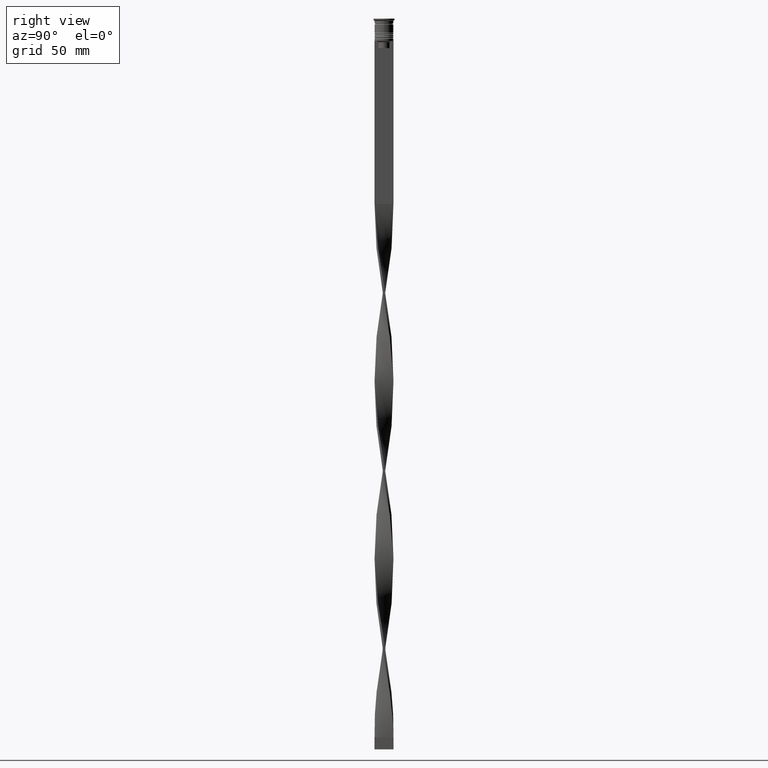
[diagram: clean part render]
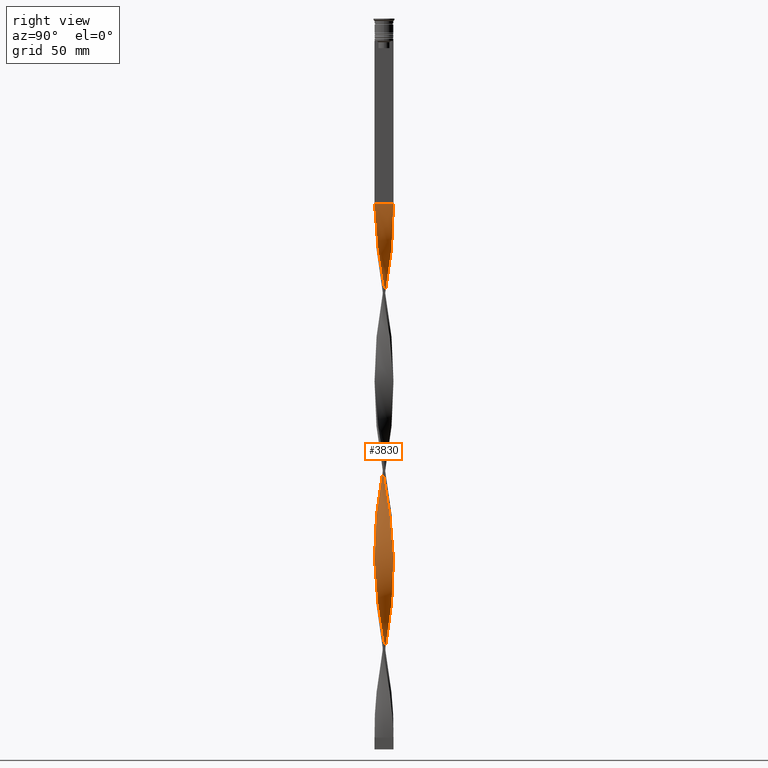
[diagram: same view with one face highlighted and labeled with its STEP entity id]
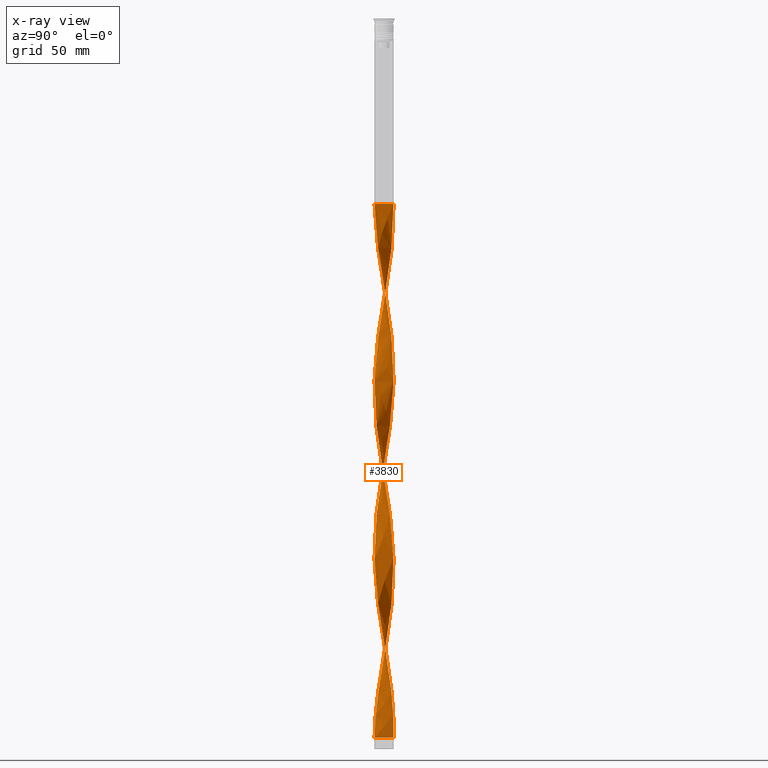
[diagram: x-ray of the same camera — body ghosted, the highlighted face saturated]
A machine part, right view. The second image highlights one B-rep face of the part: STEP entity #3830.
The next image is the same camera in x-ray: the body ghosted, the highlighted face saturated — about 0% of this face is hidden behind the body in this view.
In plain terms, the highlighted face is a freeform B-spline surface patch.
Its self-contained STEP definition (entity closure, byte-faithful):
#11 = CARTESIAN_POINT ( 'NONE',  ( -2.851421105456868776, -2.849455681240740113, -288.6403508771929864 ) ) ;
#14 = CARTESIAN_POINT ( 'NONE',  ( -2.604254856879658409, -3.076988241839528015, -209.3421052631578902 ) ) ;
#31 = CARTESIAN_POINT ( 'NONE',  ( -3.462245594293745121, 2.064668361939406616, -256.9210526315789593 ) ) ;
#39 = CARTESIAN_POINT ( 'NONE',  ( -3.462245594293745121, -2.064668361939406616, -201.4122807017543835 ) ) ;
#51 = CARTESIAN_POINT ( 'NONE',  ( -2.343526447751538289, 3.279921308307419903, -165.7280701754386030 ) ) ;
#52 = CARTESIAN_POINT ( 'NONE',  ( -2.851421105456868776, -2.849455681240740113, -137.9736842105263008 ) ) ;
#65 = CARTESIAN_POINT ( 'NONE',  ( -4.027627644762845627, -0.1679748646140039048, -189.5175438596491517 ) ) ;
#72 = CARTESIAN_POINT ( 'NONE',  ( 3.945048299290513150, 0.8286096283926639439, -118.1491228070175481 ) ) ;
#73 = CARTESIAN_POINT ( 'NONE',  ( -1.471668575845527682, -3.767727018166428188, -147.8859649122807127 ) ) ;
#82 = CARTESIAN_POINT ( 'NONE',  ( 0.5000000000000000000, -4.000000000000000000, -78.50000000000000000 ) ) ;
#86 = CARTESIAN_POINT ( 'NONE',  ( -3.876387747932444228, 1.155505650454256017, -112.2017543859649180 ) ) ;
#88 = CARTESIAN_POINT ( 'NONE',  ( 1.471668575845526350, -3.767727018166428632, -84.44736842105264429 ) ) ;
#89 = CARTESIAN_POINT ( 'NONE',  ( 0.1685505501969328801, 4.041431181225382474, -231.1491228070175623 ) ) ;
#99 = CARTESIAN_POINT ( 'NONE',  ( -0.8314494498030657876, 3.958568818774615750, -155.8157894736842195 ) ) ;
#105 = CARTESIAN_POINT ( 'NONE',  ( -1.152832542896753409, -3.877183566532631520, -219.2543859649122737 ) ) ;
#106 = CARTESIAN_POINT ( 'NONE',  ( 2.062280596060475091, 3.463668393930408040, -137.9736842105263008 ) ) ;
#107 = CARTESIAN_POINT ( 'NONE',  ( 1.151559012824299399, 3.863147918470521969, -225.2017543859649038 ) ) ;
#121 = CARTESIAN_POINT ( 'NONE',  ( 0.8258892559684172241, 3.945618701404880024, -145.9035087719298076 ) ) ;
#129 = CARTESIAN_POINT ( 'NONE',  ( 3.876387747932445116, 1.155505650454255795, -120.1315789473683964 ) ) ;
#130 = CARTESIAN_POINT ( 'NONE',  ( -1.775272850193347685, 3.634553836156354745, -243.0438596491228509 ) ) ;
#150 = CARTESIAN_POINT ( 'NONE',  ( 1.151559012824296735, -3.863147918470522413, -233.1315789473684106 ) ) ;
#151 = CARTESIAN_POINT ( 'NONE',  ( 3.622139992111328866, 1.769209393358442073, -205.3771929824561653 ) ) ;
#153 = CARTESIAN_POINT ( 'NONE',  ( 0.5000000000000000000, 4.000000000000000000, -78.50000000000000000 ) ) ;
#171 = CARTESIAN_POINT ( 'NONE',  ( -0.4989459690400814829, 4.014053836277128973, -235.1140350877193441 ) ) ;
#174 = CARTESIAN_POINT ( 'NONE',  ( -4.000343807327721102, -0.4972418155935313666, -122.1140350877193015 ) ) ;
#191 = CARTESIAN_POINT ( 'NONE',  ( 2.604254856879656632, 3.076988241839529348, -284.6754385964912331 ) ) ;
#192 = CARTESIAN_POINT ( 'NONE',  ( -0.8258892559684176682, -3.945618701404880024, -221.2368421052631788 ) ) ;
#200 = CARTESIAN_POINT ( 'NONE',  ( -3.863941018946714934, -1.148895035284348332, -126.0789473684210691 ) ) ;
#214 = CARTESIAN_POINT ( 'NONE',  ( -4.027627644762845627, -0.1679748646140039048, -189.5175438596491517 ) ) ;
#233 = CARTESIAN_POINT ( 'NONE',  ( 0.8258892559684172241, 3.945618701404880024, -296.5701754385964932 ) ) ;
#237 = CARTESIAN_POINT ( 'NONE',  ( -3.633328892441398672, 1.777778512611468020, -108.2368421052631504 ) ) ;
#261 = CARTESIAN_POINT ( 'NONE',  ( -3.087533734903234350, -2.613180192100606813, -135.9912280701753957 ) ) ;
#264 = VECTOR ( 'NONE', #398, 1000.000000000000000 ) ;
#267 = CARTESIAN_POINT ( 'NONE',  ( -2.343526447751539177, -3.279921308307419459, -141.9385964912280826 ) ) ;
#284 = CARTESIAN_POINT ( 'NONE',  ( 3.863941018946714490, 1.148895035284349442, -201.4122807017543835 ) ) ;
#287 = CARTESIAN_POINT ( 'NONE',  ( 4.041546438877109182, 0.1657638771030590097, -195.4649122807017534 ) ) ;
#304 = CARTESIAN_POINT ( 'NONE',  ( 1.152832542896750079, -3.877183566532631964, -163.7456140350876979 ) ) ;
#320 = CARTESIAN_POINT ( 'NONE',  ( -3.945048299290513150, 0.8286096283926643880, -264.8508771929824661 ) ) ;
#341 = CARTESIAN_POINT ( 'NONE',  ( 3.959141175778333022, 0.8287197540840007814, -199.4298245614035068 ) ) ;
#357 = CARTESIAN_POINT ( 'NONE',  ( -0.8258892559684165580, 3.945618701404880024, -86.42982456140350678 ) ) ;
#359 = CARTESIAN_POINT ( 'NONE',  ( 0.8314494498030688963, 3.958568818774615750, -227.1842105263158373 ) ) ;
#369 = CARTESIAN_POINT ( 'NONE',  ( 2.343526447751538733, -3.279921308307419903, -90.39473684210526017 ) ) ;
#371 = CARTESIAN_POINT ( 'NONE',  ( -2.349288341927600499, 3.292782951704461336, -96.34210526315787604 ) ) ;
#374 = CARTESIAN_POINT ( 'NONE',  ( 4.000343807327721102, -0.4972418155935317552, -110.2192982456140413 ) ) ;
#375 = CARTESIAN_POINT ( 'NONE',  ( -4.041546438877109182, -0.1657638771030611746, -120.1315789473684106 ) ) ;
#387 = CARTESIAN_POINT ( 'NONE',  ( -2.071744419492575151, 3.474111446233965950, -163.7456140350876979 ) ) ;
#396 = CARTESIAN_POINT ( 'NONE',  ( -2.615308476010501426, -3.085731170380873412, -290.6228070175438347 ) ) ;
#397 = CARTESIAN_POINT ( 'NONE',  ( 3.087533734903235683, 2.613180192100605037, -211.3245614035087669 ) ) ;
#398 = DIRECTION ( 'NONE',  ( 0.000000000000000000, 1.000000000000000000, 0.000000000000000000 ) ) ;
#404 = CARTESIAN_POINT ( 'NONE',  ( -0.4999999999999994449, 4.000000000000000000, -153.8333333333333144 ) ) ;
#408 = CARTESIAN_POINT ( 'NONE',  ( -2.062280596060475979, -3.463668393930407596, -213.3070175438596721 ) ) ;
#409 = CARTESIAN_POINT ( 'NONE',  ( -2.343526447751539177, -3.279921308307419459, -292.6052631578947398 ) ) ;
#410 = CARTESIAN_POINT ( 'NONE',  ( -0.8258892559684165580, 3.945618701404880024, -237.0964912280701924 ) ) ;
#425 = CARTESIAN_POINT ( 'NONE',  ( 0.5000000000000000000, -4.000000000000000000, -78.50000000000000000 ) ) ;
#426 = CARTESIAN_POINT ( 'NONE',  ( -3.622139992111327977, -1.769209393358442517, -280.7105263157894797 ) ) ;
#441 = CARTESIAN_POINT ( 'NONE',  ( 1.464052696545050436, 3.755868701344492688, -141.9385964912280826 ) ) ;
#450 = CARTESIAN_POINT ( 'NONE',  ( 0.1651977094215750508, 4.027742508751256167, -149.8684210526315894 ) ) ;
#451 = CARTESIAN_POINT ( 'NONE',  ( -1.152832542896751189, 3.877183566532631520, -239.0789473684210407 ) ) ;
#468 = CARTESIAN_POINT ( 'NONE',  ( 0.5000000000000000000, -4.000000000000000000, -229.1666666666666856 ) ) ;
#469 = CARTESIAN_POINT ( 'NONE',  ( 3.863941018946714490, -1.148895035284349442, -256.9210526315789593 ) ) ;
#470 = CARTESIAN_POINT ( 'NONE',  ( -0.8314494498030685632, -3.958568818774615750, -302.5175438596491517 ) ) ;
#487 = CARTESIAN_POINT ( 'NONE',  ( 2.349288341927600499, 3.292782951704461336, -286.6578947368421382 ) ) ;
#488 = CARTESIAN_POINT ( 'NONE',  ( 3.475539122107559997, -2.069348470232189818, -250.9736842105263008 ) ) ;
#493 = CARTESIAN_POINT ( 'NONE',  ( -3.462245594293745121, 2.064668361939406616, -106.2543859649122879 ) ) ;
#502 = CARTESIAN_POINT ( 'NONE',  ( -3.945048299290513150, -0.8286096283926643880, -193.4824561403508767 ) ) ;
#511 = EDGE_CURVE ( 'NONE', #3529, #1320, #1482, .T. ) ;
#534 = CARTESIAN_POINT ( 'NONE',  ( 4.041546438877108294, -0.1657638771030618130, -262.8684210526315042 ) ) ;
#535 = CARTESIAN_POINT ( 'NONE',  ( 3.462245594293745565, 2.064668361939405727, -276.7456140350877263 ) ) ;
#538 = CARTESIAN_POINT ( 'NONE',  ( -3.291162296146090682, 2.351558211267345211, -104.2719298245614112 ) ) ;
#549 = CARTESIAN_POINT ( 'NONE',  ( 3.768740862115096402, -1.469070316484696770, -254.9385964912280826 ) ) ;
#550 = CARTESIAN_POINT ( 'NONE',  ( -4.013708850648581183, -0.5017136063310719818, -191.4999999999999716 ) ) ;
#555 = CARTESIAN_POINT ( 'NONE',  ( -3.622139992111327977, -1.769209393358442517, -130.0438596491227941 ) ) ;
#580 = CARTESIAN_POINT ( 'NONE',  ( -2.859221371831710989, 2.861193531974598692, -250.9736842105263008 ) ) ;
#585 = CARTESIAN_POINT ( 'NONE',  ( -3.087533734903234350, -2.613180192100606813, -135.9912280701754241 ) ) ;
#603 = CARTESIAN_POINT ( 'NONE',  ( -3.876387747932444228, 1.155505650454256239, -262.8684210526315042 ) ) ;
#621 = CARTESIAN_POINT ( 'NONE',  ( 1.151559012824299399, 3.863147918470521969, -225.2017543859649038 ) ) ;
#637 = CARTESIAN_POINT ( 'NONE',  ( 4.027627644762845627, -0.1679748646140054313, -193.4824561403508767 ) ) ;
#661 = CARTESIAN_POINT ( 'NONE',  ( 2.615308476010501870, 3.085731170380873412, -215.2894736842105488 ) ) ;
#662 = CARTESIAN_POINT ( 'NONE',  ( -4.000343807327721102, -0.4972418155935313666, -122.1140350877193015 ) ) ;
#672 = CARTESIAN_POINT ( 'NONE',  ( -3.622139992111327533, 1.769209393358443627, -177.6228070175438347 ) ) ;
#676 = CARTESIAN_POINT ( 'NONE',  ( -2.062280596060474647, 3.463668393930408484, -94.35964912280701355 ) ) ;
#679 = CARTESIAN_POINT ( 'NONE',  ( -2.615308476010500538, 3.085731170380873856, -167.7105263157894797 ) ) ;
#680 = CARTESIAN_POINT ( 'NONE',  ( 4.027627644762845627, -0.1679748646140054313, -193.4824561403508767 ) ) ;
#690 = CARTESIAN_POINT ( 'NONE',  ( -3.475539122107559109, 2.069348470232190262, -175.6403508771929864 ) ) ;
#695 = CARTESIAN_POINT ( 'NONE',  ( -3.863941018946714046, 1.148895035284350996, -181.5877192982456449 ) ) ;
#709 = CARTESIAN_POINT ( 'NONE',  ( 3.087533734903234350, -2.613180192100606813, -96.34210526315787604 ) ) ;
#721 = CARTESIAN_POINT ( 'NONE',  ( 0.8314494498030671199, -3.958568818774615750, -80.48245614035087669 ) ) ;
#722 = CARTESIAN_POINT ( 'NONE',  ( -3.768740862115096402, -1.469070316484696548, -278.7280701754385746 ) ) ;
#729 = CARTESIAN_POINT ( 'NONE',  ( -3.863941018946714046, 1.148895035284350996, -181.5877192982456449 ) ) ;
#739 = CARTESIAN_POINT ( 'NONE',  ( -0.4989459690400818714, -4.014053836277128973, -223.2192982456140271 ) ) ;
#740 = CARTESIAN_POINT ( 'NONE',  ( -4.000343807327721102, 0.4972418155935313666, -185.5526315789473699 ) ) ;
#741 = CARTESIAN_POINT ( 'NONE',  ( 3.768740862115096846, 1.469070316484694327, -203.3947368421052602 ) ) ;
#751 = CARTESIAN_POINT ( 'NONE',  ( 1.771706497669051306, -3.620919232200196625, -86.42982456140350678 ) ) ;
#758 = CARTESIAN_POINT ( 'NONE',  ( 3.462245594293745565, 2.064668361939405727, -126.0789473684210691 ) ) ;
#759 = CARTESIAN_POINT ( 'NONE',  ( 0.8314494498030690073, 3.958568818774615750, -227.1842105263158089 ) ) ;
#771 = ORIENTED_EDGE ( 'NONE', *, *, #3254, .F. ) ;
#783 = CARTESIAN_POINT ( 'NONE',  ( -2.604254856879658409, -3.076988241839528015, -209.3421052631578902 ) ) ;
#784 = CARTESIAN_POINT ( 'NONE',  ( -2.349288341927600499, 3.292782951704461336, -247.0087719298245474 ) ) ;
#795 = CARTESIAN_POINT ( 'NONE',  ( -0.5000000000000005551, -4.000000000000000000, -304.5000000000000000 ) ) ;
#801 = CARTESIAN_POINT ( 'NONE',  ( 2.071744419492576039, -3.474111446233965506, -239.0789473684210407 ) ) ;
#802 = CARTESIAN_POINT ( 'NONE',  ( 1.775272850193347685, 3.634553836156354745, -290.6228070175438347 ) ) ;
#806 = CARTESIAN_POINT ( 'NONE',  ( 0.1685505501969329079, 4.041431181225382474, -80.48245614035087669 ) ) ;
#820 = CARTESIAN_POINT ( 'NONE',  ( 3.462245594293745565, 2.064668361939405727, -276.7456140350877263 ) ) ;
#821 = CARTESIAN_POINT ( 'NONE',  ( 3.075191833988901280, 2.606375871620971285, -280.7105263157894797 ) ) ;
#825 = CARTESIAN_POINT ( 'NONE',  ( 0.4989459690400802061, -4.014053836277129861, -159.7807017543859729 ) ) ;
#842 = CARTESIAN_POINT ( 'NONE',  ( 2.851421105456868332, -2.849455681240740557, -245.0263157894736992 ) ) ;
#844 = CARTESIAN_POINT ( 'NONE',  ( -2.349288341927602719, -3.292782951704460892, -211.3245614035087385 ) ) ;
#850 = CARTESIAN_POINT ( 'NONE',  ( -2.349288341927600499, 3.292782951704461780, -96.34210526315787604 ) ) ;
#864 = CARTESIAN_POINT ( 'NONE',  ( 2.071744419492575595, -3.474111446233965506, -239.0789473684210407 ) ) ;
#873 = CARTESIAN_POINT ( 'NONE',  ( -1.151559012824297401, -3.863147918470522413, -149.8684210526315894 ) ) ;
#889 = CARTESIAN_POINT ( 'NONE',  ( 4.000343807327721102, 0.4972418155935300343, -197.4473684210526585 ) ) ;
#896 = CARTESIAN_POINT ( 'NONE',  ( 3.754858320186921894, -1.466642081532861797, -185.5526315789473699 ) ) ;
#904 = VERTEX_POINT ( 'NONE', #2858 ) ;
#915 = CARTESIAN_POINT ( 'NONE',  ( -3.863941018946714934, -1.148895035284348332, -276.7456140350877263 ) ) ;
#921 = CARTESIAN_POINT ( 'NONE',  ( -0.4999999999999997780, 1.333333333333333481, -304.5000000000000000 ) ) ;
#937 = CARTESIAN_POINT ( 'NONE',  ( -2.349288341927600499, 3.292782951704461780, -247.0087719298245190 ) ) ;
#941 = CARTESIAN_POINT ( 'NONE',  ( -0.4999999999999994449, 4.000000000000000000, -304.5000000000000000 ) ) ;
#945 = EDGE_CURVE ( 'NONE', #2796, #904, #3892, .T. ) ;
#955 = CARTESIAN_POINT ( 'NONE',  ( 2.604254856879654412, -3.076988241839531568, -173.6578947368421098 ) ) ;
#977 = CARTESIAN_POINT ( 'NONE',  ( -3.633328892441398672, 1.777778512611468020, -258.9035087719299213 ) ) ;
#992 = CARTESIAN_POINT ( 'NONE',  ( 2.071744419492576039, -3.474111446233965506, -88.41228070175438347 ) ) ;
#997 = CARTESIAN_POINT ( 'NONE',  ( -3.622139992111327533, 1.769209393358443627, -177.6228070175438347 ) ) ;
#998 = CARTESIAN_POINT ( 'NONE',  ( 1.775272850193346796, -3.634553836156355633, -167.7105263157894797 ) ) ;
#1009 = CARTESIAN_POINT ( 'NONE',  ( 1.152832542896752965, 3.877183566532631076, -143.9210526315789593 ) ) ;
#1013 = CARTESIAN_POINT ( 'NONE',  ( -3.462245594293745121, 2.064668361939406616, -106.2543859649122879 ) ) ;
#1016 = CARTESIAN_POINT ( 'NONE',  ( 3.075191833988901280, 2.606375871620971285, -130.0438596491227941 ) ) ;
#1017 = CARTESIAN_POINT ( 'NONE',  ( 3.633328892441399116, -1.777778512611468464, -183.5701754385964648 ) ) ;
#1027 = CARTESIAN_POINT ( 'NONE',  ( 0.4989459690400829817, 4.014053836277128973, -147.8859649122807127 ) ) ;
#1033 = CARTESIAN_POINT ( 'NONE',  ( 3.281536428505396952, -2.341264331166398982, -98.32456140350876694 ) ) ;
#1034 = CARTESIAN_POINT ( 'NONE',  ( -1.151559012824297401, -3.863147918470522413, -300.5350877192982466 ) ) ;
#1048 = CARTESIAN_POINT ( 'NONE',  ( 2.859221371831710545, 2.861193531974598692, -132.0263157894736992 ) ) ;
#1059 = CARTESIAN_POINT ( 'NONE',  ( -0.8258892559684176682, -3.945618701404880024, -221.2368421052631788 ) ) ;
#1060 = CARTESIAN_POINT ( 'NONE',  ( 2.615308476010501426, -3.085731170380873412, -92.37719298245615107 ) ) ;
#1061 = CARTESIAN_POINT ( 'NONE',  ( -3.754858320186921894, 1.466642081532862241, -260.8859649122807127 ) ) ;
#1065 = CARTESIAN_POINT ( 'NONE',  ( 0.5000000000000000000, -4.000000000000000000, -78.50000000000000000 ) ) ;
#1069 = CARTESIAN_POINT ( 'NONE',  ( -2.615308476010500538, 3.085731170380874300, -167.7105263157894797 ) ) ;
#1077 = CARTESIAN_POINT ( 'NONE',  ( 3.475539122107559997, -2.069348470232189818, -100.3070175438596294 ) ) ;
#1078 = CARTESIAN_POINT ( 'NONE',  ( -3.959141175778332133, -0.8287197540840012255, -274.7631578947368780 ) ) ;
#1091 = CARTESIAN_POINT ( 'NONE',  ( 2.859221371831710989, 2.861193531974598692, -282.6929824561403848 ) ) ;
#1092 = CARTESIAN_POINT ( 'NONE',  ( -1.771706497669051972, -3.620919232200196625, -296.5701754385964932 ) ) ;
#1113 = CARTESIAN_POINT ( 'NONE',  ( 3.945048299290513150, 0.8286096283926639439, -268.8157894736842195 ) ) ;
#1115 = CARTESIAN_POINT ( 'NONE',  ( 3.087533734903234350, -2.613180192100606813, -247.0087719298245190 ) ) ;
#1119 = CARTESIAN_POINT ( 'NONE',  ( -3.075191833988900836, 2.606375871620972173, -102.2894736842105203 ) ) ;
#1134 = CARTESIAN_POINT ( 'NONE',  ( 2.851421105456868332, -2.849455681240740557, -245.0263157894736992 ) ) ;
#1138 = CARTESIAN_POINT ( 'NONE',  ( 0.1651977094215738573, -4.027742508751257056, -157.7982456140350962 ) ) ;
#1151 = CARTESIAN_POINT ( 'NONE',  ( 1.775272850193347685, 3.634553836156354745, -290.6228070175438347 ) ) ;
#1152 = CARTESIAN_POINT ( 'NONE',  ( 4.027627644762845627, 0.1679748646140053203, -264.8508771929824661 ) ) ;
#1162 = CARTESIAN_POINT ( 'NONE',  ( -0.5000000000000002220, -1.333333333333333481, -304.5000000000000000 ) ) ;
#1173 = CARTESIAN_POINT ( 'NONE',  ( -3.075191833988901724, -2.606375871620970841, -205.3771929824561653 ) ) ;
#1183 = CARTESIAN_POINT ( 'NONE',  ( -3.959141175778332133, -0.8287197540840012255, -124.0964912280701640 ) ) ;
#1193 = CARTESIAN_POINT ( 'NONE',  ( 3.087533734903234350, -2.613180192100606813, -247.0087719298245474 ) ) ;
#1202 = CARTESIAN_POINT ( 'NONE',  ( 1.471668575845526794, 3.767727018166428188, -223.2192982456140271 ) ) ;
#1205 = CARTESIAN_POINT ( 'NONE',  ( -0.8314494498030685632, -3.958568818774615750, -151.8508771929824661 ) ) ;
#1220 = CARTESIAN_POINT ( 'NONE',  ( 3.754858320186921894, -1.466642081532861797, -185.5526315789473699 ) ) ;
#1239 = CARTESIAN_POINT ( 'NONE',  ( -0.1651977094215744957, 4.027742508751256167, -82.46491228070175339 ) ) ;
#1244 = CARTESIAN_POINT ( 'NONE',  ( 2.859221371831710545, -2.861193531974599580, -175.6403508771930149 ) ) ;
#1265 = CARTESIAN_POINT ( 'NONE',  ( -0.4989459690400814273, 4.014053836277128973, -235.1140350877193157 ) ) ;
#1284 = CARTESIAN_POINT ( 'NONE',  ( 3.622139992111328866, 1.769209393358442073, -205.3771929824561653 ) ) ;
#1296 = CARTESIAN_POINT ( 'NONE',  ( 2.851421105456868332, -2.849455681240740557, -94.35964912280701355 ) ) ;
#1306 = CARTESIAN_POINT ( 'NONE',  ( 2.604254856879656632, 3.076988241839529348, -134.0087719298245759 ) ) ;
#1319 = CARTESIAN_POINT ( 'NONE',  ( 0.8314494498030671199, -3.958568818774615750, -80.48245614035087669 ) ) ;
#1320 = VERTEX_POINT ( 'NONE', #795 ) ;
#1325 = CARTESIAN_POINT ( 'NONE',  ( -0.8314494498030685632, -3.958568818774615750, -302.5175438596491517 ) ) ;
#1326 = CARTESIAN_POINT ( 'NONE',  ( 1.464052696545049548, -3.755868701344493132, -165.7280701754386030 ) ) ;
#1336 = CARTESIAN_POINT ( 'NONE',  ( 3.075191833988901280, 2.606375871620971285, -130.0438596491227941 ) ) ;
#1340 = CARTESIAN_POINT ( 'NONE',  ( -3.768740862115095513, 1.469070316484698990, -179.6052631578947398 ) ) ;
#1351 = CARTESIAN_POINT ( 'NONE',  ( 3.863941018946714490, -1.148895035284349442, -106.2543859649122879 ) ) ;
#1357 = CARTESIAN_POINT ( 'NONE',  ( -0.1685505501969314646, 4.041431181225382474, -151.8508771929824661 ) ) ;
#1358 = CARTESIAN_POINT ( 'NONE',  ( -2.604254856879656188, 3.076988241839530236, -248.9912280701754241 ) ) ;
#1374 = CARTESIAN_POINT ( 'NONE',  ( -1.151559012824296291, 3.863147918470523301, -157.7982456140350962 ) ) ;
#1382 = CARTESIAN_POINT ( 'NONE',  ( 3.633328892441398672, 1.777778512611467576, -124.0964912280701640 ) ) ;
#1383 = CARTESIAN_POINT ( 'NONE',  ( -3.462245594293745121, 2.064668361939406616, -256.9210526315789593 ) ) ;
#1399 = CARTESIAN_POINT ( 'NONE',  ( -3.945048299290513150, -0.8286096283926643880, -193.4824561403508767 ) ) ;
#1400 = CARTESIAN_POINT ( 'NONE',  ( 0.5000000000000000000, 4.000000000000000000, -229.1666666666666856 ) ) ;
#1415 = CARTESIAN_POINT ( 'NONE',  ( 4.027627644762845627, 0.1679748646140053203, -264.8508771929824661 ) ) ;
#1440 = CARTESIAN_POINT ( 'NONE',  ( 0.4989459690400829817, 4.014053836277128973, -298.5526315789473983 ) ) ;
#1442 = CARTESIAN_POINT ( 'NONE',  ( 0.1685505501969309927, -4.041431181225382474, -227.1842105263158373 ) ) ;
#1447 = CARTESIAN_POINT ( 'NONE',  ( -2.851421105456868776, -2.849455681240740113, -137.9736842105263008 ) ) ;
#1460 = CARTESIAN_POINT ( 'NONE',  ( 0.1651977094215750508, 4.027742508751256167, -300.5350877192982466 ) ) ;
#1461 = CARTESIAN_POINT ( 'NONE',  ( -2.859221371831710989, -2.861193531974598248, -207.3596491228070136 ) ) ;
#1479 = CARTESIAN_POINT ( 'NONE',  ( 4.013708850648581183, 0.5017136063310724259, -266.8333333333333712 ) ) ;
#1480 = CARTESIAN_POINT ( 'NONE',  ( 2.604254856879656632, 3.076988241839529348, -284.6754385964912331 ) ) ;
#1482 =( BOUNDED_CURVE ( )  B_SPLINE_CURVE ( 2, ( #1547, #2491, #1239, #4047, #357, #2162, #1609, #3510, #676, #371, #3137, #1568, #1667, #2301, #1013, #3214, #2899, #86, #1984, #2930, #1534, #375, #662, #1183, #3833, #2432, #4034, #3078, #3410, #585, #52, #2144, #267, #1613, #1636, #73, #873, #1205, #1804, #3370, #2790, #2476, #3751, #1940, #1326, #998, #2452, #2572, #3728, #2248, #3181, #4055, #2865, #1017, #896, #3514, #1846, #3104, #680, #287, #3534, #2014, #2587, #741, #151, #2904, #3906, #397, #3279, #1695, #3591, #2947, #2609, #2632, #107, #759, #1400, #89, #3556, #171, #410, #451, #1995, #130, #3945, #784, #1358, #1958, #1672, #2672, #1383, #3253, #1061, #1654, #3237, #1979, #2265, #1717, #2039, #1078, #2285, #722, #426, #2922, #2970, #3613, #2339, #2321, #2653, #3922, #1092, #3300, #1034, #470, #3889 ),
 .UNSPECIFIED., .F., .T. ) 
 B_SPLINE_CURVE_WITH_KNOTS ( ( 3, 2, 2, 2, 2, 2, 2, 2, 2, 2, 2, 2, 2, 2, 2, 2, 2, 2, 2, 2, 2, 2, 2, 2, 2, 2, 2, 2, 2, 2, 2, 2, 2, 2, 2, 2, 2, 2, 2, 2, 2, 2, 2, 2, 2, 2, 2, 2, 2, 2, 2, 2, 2, 2, 2, 2, 2, 3 ),
 ( 0.000000000000000000, 0.01315789473684210453, 0.02631578947368420907, 0.03947368421052631360, 0.05263157894736841813, 0.06578947368421052266, 0.07894736842105262720, 0.09210526315789473173, 0.1052631578947368363, 0.1184210526315789408, 0.1315789473684210453, 0.1447368421052631637, 0.1578947368421052544, 0.1710526315789473728, 0.1842105263157894635, 0.1973684210526315541, 0.2105263157894736725, 0.2236842105263157909, 0.2368421052631578816, 0.2500000000000000000, 0.2631578947368420907, 0.2763157894736842368, 0.2894736842105263275, 0.3026315789473684181, 0.3157894736842105088, 0.3289473684210526550, 0.3421052631578947456, 0.3552631578947368918, 0.3684210526315789269, 0.3815789473684210731, 0.3947368421052631082, 0.4078947368421052544, 0.4210526315789473450, 0.4342105263157895467, 0.4473684210526315819, 0.4605263157894736725, 0.4736842105263157632, 0.4868421052631579093, 0.5000000000000000000, 0.5131578947368421462, 0.5263157894736841813, 0.5394736842105263275, 0.5526315789473684736, 0.5657894736842105088, 0.5789473684210526550, 0.5921052631578946901, 0.6052631578947368363, 0.6184210526315789824, 0.6315789473684210176, 0.6447368421052631637, 0.6578947368421053099, 0.6710526315789473450, 0.6842105263157894912, 0.6973684210526315264, 0.7105263157894737835, 0.7236842105263158187, 0.7368421052631578538, 0.7500000000000000000 ),
 .UNSPECIFIED. ) 
 CURVE ( )  GEOMETRIC_REPRESENTATION_ITEM ( )  RATIONAL_B_SPLINE_CURVE ( ( 1.000000000000000000, 0.9965844930066698470, 1.000000000000000000, 0.9965844930066698470, 1.000000000000000000, 0.9965844930066698470, 1.000000000000000000, 0.9965844930066698470, 1.000000000000000000, 0.9965844930066698470, 1.000000000000000000, 0.9965844930066698470, 1.000000000000000000, 0.9965844930066698470, 1.000000000000000000, 0.9965844930066698470, 1.000000000000000000, 0.9965844930066698470, 1.000000000000000000, 0.9965844930066698470, 1.000000000000000000, 0.9965844930066698470, 1.000000000000000000, 0.9965844930066698470, 1.000000000000000000, 0.9965844930066698470, 1.000000000000000000, 0.9965844930066698470, 1.000000000000000000, 0.9965844930066698470, 1.000000000000000000, 0.9965844930066698470, 1.000000000000000000, 0.9965844930066698470, 1.000000000000000000, 0.9965844930066698470, 1.000000000000000000, 0.9965844930066698470, 1.000000000000000000, 0.9965844930066698470, 1.000000000000000000, 0.9965844930066698470, 1.000000000000000000, 0.9965844930066698470, 1.000000000000000000, 0.9965844930066698470, 1.000000000000000000, 0.9965844930066698470, 1.000000000000000000, 0.9965844930066698470, 1.000000000000000000, 0.9965844930066698470, 1.000000000000000000, 0.9965844930066698470, 1.000000000000000000, 0.9965844930066698470, 1.000000000000000000, 0.9965844930066698470, 1.000000000000000000, 0.9965844930066698470, 1.000000000000000000, 0.9965844930066698470, 1.000000000000000000, 0.9965844930066698470, 1.000000000000000000, 0.9965844930066698470, 1.000000000000000000, 0.9965844930066698470, 1.000000000000000000, 0.9965844930066698470, 1.000000000000000000, 0.9965844930066698470, 1.000000000000000000, 0.9965844930066698470, 1.000000000000000000, 0.9965844930066698470, 1.000000000000000000, 0.9965844930066698470, 1.000000000000000000, 0.9965844930066698470, 1.000000000000000000, 0.9965844930066698470, 1.000000000000000000, 0.9965844930066698470, 1.000000000000000000, 0.9965844930066698470, 1.000000000000000000, 0.9965844930066698470, 1.000000000000000000, 0.9965844930066698470, 1.000000000000000000, 0.9965844930066698470, 1.000000000000000000, 0.9965844930066698470, 1.000000000000000000, 0.9965844930066698470, 1.000000000000000000, 0.9965844930066698470, 1.000000000000000000, 0.9965844930066698470, 1.000000000000000000, 0.9965844930066698470, 1.000000000000000000, 0.9965844930066698470, 1.000000000000000000, 0.9965844930066698470, 1.000000000000000000, 0.9965844930066698470, 1.000000000000000000, 0.9965844930066698470, 1.000000000000000000, 0.9965844930066698470, 1.000000000000000000, 0.9965844930066698470, 1.000000000000000000 ) ) 
 REPRESENTATION_ITEM ( '' )  );
#1484 = CARTESIAN_POINT ( 'NONE',  ( -3.876387747932444228, 1.155505650454256239, -112.2017543859649180 ) ) ;
#1502 = CARTESIAN_POINT ( 'NONE',  ( 0.8258892559684172241, 3.945618701404880024, -296.5701754385964932 ) ) ;
#1511 = CARTESIAN_POINT ( 'NONE',  ( -2.615308476010501426, -3.085731170380873412, -139.9561403508772059 ) ) ;
#1531 = CARTESIAN_POINT ( 'NONE',  ( 2.071744419492577816, 3.474111446233964617, -219.2543859649122737 ) ) ;
#1534 = CARTESIAN_POINT ( 'NONE',  ( -4.027627644762845627, 0.1679748646140058199, -118.1491228070175481 ) ) ;
#1547 = CARTESIAN_POINT ( 'NONE',  ( 0.5000000000000000000, 4.000000000000000000, -78.50000000000000000 ) ) ;
#1551 = CARTESIAN_POINT ( 'NONE',  ( -3.087533734903234350, -2.613180192100606813, -286.6578947368421382 ) ) ;
#1568 = CARTESIAN_POINT ( 'NONE',  ( -2.859221371831710545, 2.861193531974598692, -100.3070175438596294 ) ) ;
#1572 = CARTESIAN_POINT ( 'NONE',  ( 3.768740862115096846, 1.469070316484694327, -203.3947368421052886 ) ) ;
#1574 = LINE ( 'NONE', #2266, #264 ) ;
#1580 = B_SPLINE_CURVE_WITH_KNOTS ( 'NONE', 3,
 ( #2123, #1162, #921, #941 ),
 .UNSPECIFIED., .F., .F.,
 ( 4, 4 ),
 ( 0.000000000000000000, 1.000000000000000000 ),
 .UNSPECIFIED. ) ;
#1593 = CARTESIAN_POINT ( 'NONE',  ( -0.8258892559684165580, 3.945618701404880024, -237.0964912280701924 ) ) ;
#1601 = CARTESIAN_POINT ( 'NONE',  ( -3.291162296146092014, -2.351558211267342990, -203.3947368421052602 ) ) ;
#1609 = CARTESIAN_POINT ( 'NONE',  ( -1.464052696545049548, 3.755868701344493132, -90.39473684210526017 ) ) ;
#1612 = CARTESIAN_POINT ( 'NONE',  ( -3.291162296146090682, 2.351558211267345211, -254.9385964912280826 ) ) ;
#1613 = CARTESIAN_POINT ( 'NONE',  ( -2.071744419492577816, -3.474111446233965061, -143.9210526315789593 ) ) ;
#1624 = CARTESIAN_POINT ( 'NONE',  ( 3.633328892441399116, 1.777778512611467576, -124.0964912280701640 ) ) ;
#1634 = CARTESIAN_POINT ( 'NONE',  ( -3.475539122107559553, 2.069348470232190706, -175.6403508771930149 ) ) ;
#1636 = CARTESIAN_POINT ( 'NONE',  ( -1.771706497669051972, -3.620919232200196625, -145.9035087719298076 ) ) ;
#1647 = CARTESIAN_POINT ( 'NONE',  ( -1.471668575845525240, 3.767727018166429076, -159.7807017543859729 ) ) ;
#1653 = CARTESIAN_POINT ( 'NONE',  ( 3.622139992111327533, -1.769209393358443627, -102.2894736842105203 ) ) ;
#1654 = CARTESIAN_POINT ( 'NONE',  ( -3.876387747932444228, 1.155505650454256017, -262.8684210526315042 ) ) ;
#1663 = CARTESIAN_POINT ( 'NONE',  ( 3.876387747932445116, 1.155505650454255573, -120.1315789473684106 ) ) ;
#1667 = CARTESIAN_POINT ( 'NONE',  ( -3.075191833988900836, 2.606375871620972173, -102.2894736842105203 ) ) ;
#1670 = CARTESIAN_POINT ( 'NONE',  ( -1.775272850193348129, -3.634553836156354745, -215.2894736842105203 ) ) ;
#1671 = CARTESIAN_POINT ( 'NONE',  ( 4.027627644762845627, 0.1679748646140053203, -114.1842105263157947 ) ) ;
#1672 = CARTESIAN_POINT ( 'NONE',  ( -3.075191833988900836, 2.606375871620972173, -252.9561403508772059 ) ) ;
#1683 = CARTESIAN_POINT ( 'NONE',  ( 3.959141175778332133, -0.8287197540840016696, -108.2368421052631646 ) ) ;
#1693 = CARTESIAN_POINT ( 'NONE',  ( -0.1651977094215772157, -4.027742508751256167, -225.2017543859649038 ) ) ;
#1694 = CARTESIAN_POINT ( 'NONE',  ( 3.959141175778332133, -0.8287197540840015586, -108.2368421052631504 ) ) ;
#1695 = CARTESIAN_POINT ( 'NONE',  ( 2.615308476010501426, 3.085731170380873412, -215.2894736842105203 ) ) ;
#1709 = CARTESIAN_POINT ( 'NONE',  ( -3.281536428505396064, 2.341264331166400314, -173.6578947368421098 ) ) ;
#1716 = CARTESIAN_POINT ( 'NONE',  ( -1.771706497669051084, 3.620919232200197069, -161.7631578947368212 ) ) ;
#1717 = CARTESIAN_POINT ( 'NONE',  ( -4.041546438877109182, -0.1657638771030611746, -270.7982456140350678 ) ) ;
#1735 = CARTESIAN_POINT ( 'NONE',  ( 2.859221371831710545, 2.861193531974598692, -282.6929824561403848 ) ) ;
#1736 = CARTESIAN_POINT ( 'NONE',  ( 0.1651977094215750508, 4.027742508751256167, -300.5350877192982466 ) ) ;
#1754 = CARTESIAN_POINT ( 'NONE',  ( -0.1651977094215772157, -4.027742508751256167, -225.2017543859649038 ) ) ;
#1759 = CARTESIAN_POINT ( 'NONE',  ( -3.959141175778332133, -0.8287197540840011145, -124.0964912280701640 ) ) ;
#1775 = CARTESIAN_POINT ( 'NONE',  ( 0.8314494498030671199, -3.958568818774615750, -231.1491228070175623 ) ) ;
#1794 = CARTESIAN_POINT ( 'NONE',  ( 3.291162296146090682, 2.351558211267345211, -278.7280701754385746 ) ) ;
#1795 = CARTESIAN_POINT ( 'NONE',  ( 1.152832542896752965, 3.877183566532631076, -294.5877192982455881 ) ) ;
#1799 = CARTESIAN_POINT ( 'NONE',  ( -2.859221371831710989, 2.861193531974598692, -100.3070175438596294 ) ) ;
#1804 = CARTESIAN_POINT ( 'NONE',  ( -0.5000000000000005551, -4.000000000000000000, -153.8333333333333144 ) ) ;
#1812 = CARTESIAN_POINT ( 'NONE',  ( 4.000343807327721102, -0.4972418155935317552, -260.8859649122807127 ) ) ;
#1818 = CARTESIAN_POINT ( 'NONE',  ( -3.475539122107559997, -2.069348470232189818, -132.0263157894736707 ) ) ;
#1842 = CARTESIAN_POINT ( 'NONE',  ( 1.464052696545049548, -3.755868701344493132, -165.7280701754386030 ) ) ;
#1846 = CARTESIAN_POINT ( 'NONE',  ( 3.945048299290513150, -0.8286096283926659423, -189.5175438596491517 ) ) ;
#1863 = CARTESIAN_POINT ( 'NONE',  ( -3.475539122107559997, -2.069348470232189818, -282.6929824561403848 ) ) ;
#1880 = CARTESIAN_POINT ( 'NONE',  ( -1.464052696545049548, 3.755868701344493132, -241.0614035087719174 ) ) ;
#1901 = CARTESIAN_POINT ( 'NONE',  ( 1.775272850193346796, -3.634553836156355633, -167.7105263157894797 ) ) ;
#1923 = CARTESIAN_POINT ( 'NONE',  ( -2.604254856879656188, 3.076988241839530236, -248.9912280701754241 ) ) ;
#1934 = CARTESIAN_POINT ( 'NONE',  ( -4.041546438877108294, 0.1657638771030640612, -187.5350877192982466 ) ) ;
#1939 = CARTESIAN_POINT ( 'NONE',  ( -1.151559012824297401, -3.863147918470522413, -300.5350877192982466 ) ) ;
#1940 = CARTESIAN_POINT ( 'NONE',  ( 1.152832542896750301, -3.877183566532631964, -163.7456140350876979 ) ) ;
#1956 = CARTESIAN_POINT ( 'NONE',  ( -2.071744419492577371, -3.474111446233965061, -294.5877192982455881 ) ) ;
#1958 = CARTESIAN_POINT ( 'NONE',  ( -2.859221371831710545, 2.861193531974598692, -250.9736842105263008 ) ) ;
#1967 = ORIENTED_EDGE ( 'NONE', *, *, #2699, .F. ) ;
#1970 = CARTESIAN_POINT ( 'NONE',  ( 4.041546438877108294, -0.1657638771030618130, -112.2017543859649180 ) ) ;
#1978 = CARTESIAN_POINT ( 'NONE',  ( 2.851421105456868332, -2.849455681240740557, -94.35964912280701355 ) ) ;
#1979 = CARTESIAN_POINT ( 'NONE',  ( -4.013708850648581183, 0.5017136063310728700, -266.8333333333333712 ) ) ;
#1984 = CARTESIAN_POINT ( 'NONE',  ( -3.945048299290513150, 0.8286096283926643880, -114.1842105263157947 ) ) ;
#1987 = CARTESIAN_POINT ( 'NONE',  ( 4.000343807327721102, -0.4972418155935317552, -110.2192982456140413 ) ) ;
#1994 = CARTESIAN_POINT ( 'NONE',  ( 3.754858320186921894, 1.466642081532861797, -122.1140350877193015 ) ) ;
#1995 = CARTESIAN_POINT ( 'NONE',  ( -1.464052696545049548, 3.755868701344493132, -241.0614035087719174 ) ) ;
#2006 = CARTESIAN_POINT ( 'NONE',  ( -3.959141175778333022, 0.8287197540840021137, -183.5701754385964648 ) ) ;
#2013 = CARTESIAN_POINT ( 'NONE',  ( -0.5000000000000005551, -4.000000000000000000, -304.5000000000000000 ) ) ;
#2014 = CARTESIAN_POINT ( 'NONE',  ( 3.959141175778333022, 0.8287197540840007814, -199.4298245614035068 ) ) ;
#2037 = CARTESIAN_POINT ( 'NONE',  ( 3.281536428505396952, -2.341264331166398982, -248.9912280701754241 ) ) ;
#2038 = CARTESIAN_POINT ( 'NONE',  ( -3.462245594293745121, -2.064668361939406616, -201.4122807017543835 ) ) ;
#2039 = CARTESIAN_POINT ( 'NONE',  ( -4.000343807327721102, -0.4972418155935313666, -272.7807017543859729 ) ) ;
#2057 = CARTESIAN_POINT ( 'NONE',  ( 2.349288341927600499, 3.292782951704461780, -286.6578947368421382 ) ) ;
#2072 = CARTESIAN_POINT ( 'NONE',  ( 0.4989459690400829261, 4.014053836277128973, -298.5526315789473983 ) ) ;
#2077 = CARTESIAN_POINT ( 'NONE',  ( 0.8258892559684163359, -3.945618701404880913, -161.7631578947368212 ) ) ;
#2093 = CARTESIAN_POINT ( 'NONE',  ( 3.475539122107559553, -2.069348470232189374, -250.9736842105263008 ) ) ;
#2095 = CARTESIAN_POINT ( 'NONE',  ( 2.615308476010501426, -3.085731170380873412, -243.0438596491228509 ) ) ;
#2100 = CARTESIAN_POINT ( 'NONE',  ( -2.604254856879656188, 3.076988241839530236, -98.32456140350876694 ) ) ;
#2111 = CARTESIAN_POINT ( 'NONE',  ( 3.075191833988901280, 2.606375871620971285, -280.7105263157894797 ) ) ;
#2113 = CARTESIAN_POINT ( 'NONE',  ( -3.291162296146092014, -2.351558211267342990, -203.3947368421052886 ) ) ;
#2117 = CARTESIAN_POINT ( 'NONE',  ( -3.945048299290513150, 0.8286096283926643880, -114.1842105263157947 ) ) ;
#2121 = CARTESIAN_POINT ( 'NONE',  ( -3.075191833988901724, -2.606375871620970841, -205.3771929824561653 ) ) ;
#2123 = CARTESIAN_POINT ( 'NONE',  ( -0.5000000000000005551, -4.000000000000000000, -304.5000000000000000 ) ) ;
#2138 = CARTESIAN_POINT ( 'NONE',  ( 2.343526447751540953, 3.279921308307418126, -217.2719298245613970 ) ) ;
#2144 = CARTESIAN_POINT ( 'NONE',  ( -2.615308476010500982, -3.085731170380873412, -139.9561403508772059 ) ) ;
#2162 = CARTESIAN_POINT ( 'NONE',  ( -1.152832542896751189, 3.877183566532631520, -88.41228070175438347 ) ) ;
#2166 = CARTESIAN_POINT ( 'NONE',  ( -3.622139992111327977, -1.769209393358442517, -280.7105263157894797 ) ) ;
#2185 = CARTESIAN_POINT ( 'NONE',  ( -3.754858320186921894, 1.466642081532862241, -260.8859649122807127 ) ) ;
#2203 = CARTESIAN_POINT ( 'NONE',  ( 3.087533734903235683, 2.613180192100605037, -211.3245614035087385 ) ) ;
#2228 = CARTESIAN_POINT ( 'NONE',  ( -4.013708850648581183, 0.5017136063310728700, -266.8333333333333712 ) ) ;
#2247 = CARTESIAN_POINT ( 'NONE',  ( -4.041546438877107406, 0.1657638771030640612, -187.5350877192982750 ) ) ;
#2248 = CARTESIAN_POINT ( 'NONE',  ( 2.859221371831710101, -2.861193531974599580, -175.6403508771929864 ) ) ;
#2257 = CARTESIAN_POINT ( 'NONE',  ( 0.1651977094215750508, 4.027742508751256167, -149.8684210526315894 ) ) ;
#2264 = CARTESIAN_POINT ( 'NONE',  ( -3.087533734903233906, 2.613180192100608146, -171.6754385964912046 ) ) ;
#2265 = CARTESIAN_POINT ( 'NONE',  ( -4.027627644762845627, 0.1679748646140058199, -268.8157894736842195 ) ) ;
#2266 = CARTESIAN_POINT ( 'NONE',  ( 0.5000000000000000000, -4.000000000000000000, -78.50000000000000000 ) ) ;
#2275 = CARTESIAN_POINT ( 'NONE',  ( -3.768740862115095513, 1.469070316484699212, -179.6052631578947398 ) ) ;
#2283 = CARTESIAN_POINT ( 'NONE',  ( 1.771706497669051306, -3.620919232200196625, -86.42982456140350678 ) ) ;
#2285 = CARTESIAN_POINT ( 'NONE',  ( -3.863941018946714934, -1.148895035284348332, -276.7456140350877263 ) ) ;
#2296 = CARTESIAN_POINT ( 'NONE',  ( 1.151559012824296735, -3.863147918470522413, -82.46491228070175339 ) ) ;
#2301 = CARTESIAN_POINT ( 'NONE',  ( -3.291162296146090682, 2.351558211267345211, -104.2719298245614112 ) ) ;
#2304 = CARTESIAN_POINT ( 'NONE',  ( -3.281536428505396064, 2.341264331166400314, -173.6578947368421098 ) ) ;
#2313 = CARTESIAN_POINT ( 'NONE',  ( 3.754858320186921894, 1.466642081532861797, -122.1140350877193015 ) ) ;
#2320 = CARTESIAN_POINT ( 'NONE',  ( 0.8258892559684172241, 3.945618701404880024, -145.9035087719298076 ) ) ;
#2321 = CARTESIAN_POINT ( 'NONE',  ( -2.615308476010500982, -3.085731170380873412, -290.6228070175438347 ) ) ;
#2337 = CARTESIAN_POINT ( 'NONE',  ( -2.859221371831710989, -2.861193531974598248, -207.3596491228070136 ) ) ;
#2338 = CARTESIAN_POINT ( 'NONE',  ( 2.062280596060475091, 3.463668393930408040, -288.6403508771929864 ) ) ;
#2339 = CARTESIAN_POINT ( 'NONE',  ( -2.851421105456868776, -2.849455681240740113, -288.6403508771929864 ) ) ;
#2343 = CARTESIAN_POINT ( 'NONE',  ( -1.771706497669051972, -3.620919232200196625, -145.9035087719298076 ) ) ;
#2360 = CARTESIAN_POINT ( 'NONE',  ( -1.775272850193348129, -3.634553836156354745, -215.2894736842105488 ) ) ;
#2363 = CARTESIAN_POINT ( 'NONE',  ( -0.8314494498030685632, -3.958568818774615750, -151.8508771929824661 ) ) ;
#2378 = CARTESIAN_POINT ( 'NONE',  ( 3.633328892441398672, 1.777778512611467576, -274.7631578947368780 ) ) ;
#2397 = CARTESIAN_POINT ( 'NONE',  ( 2.062280596060475091, 3.463668393930408040, -288.6403508771929864 ) ) ;
#2399 = CARTESIAN_POINT ( 'NONE',  ( 3.281536428505396952, -2.341264331166398982, -248.9912280701754241 ) ) ;
#2404 = CARTESIAN_POINT ( 'NONE',  ( -1.775272850193347685, 3.634553836156354745, -92.37719298245615107 ) ) ;
#2423 = CARTESIAN_POINT ( 'NONE',  ( 4.013708850648581183, 0.5017136063310724259, -266.8333333333333712 ) ) ;
#2429 = CARTESIAN_POINT ( 'NONE',  ( -1.464052696545049548, 3.755868701344493132, -90.39473684210526017 ) ) ;
#2432 = CARTESIAN_POINT ( 'NONE',  ( -3.768740862115096402, -1.469070316484696548, -128.0614035087719458 ) ) ;
#2440 = EDGE_LOOP ( 'NONE', ( #771, #3842, #1967, #3667 ) ) ;
#2448 = CARTESIAN_POINT ( 'NONE',  ( 3.075191833988900836, -2.606375871620972173, -177.6228070175438347 ) ) ;
#2452 = CARTESIAN_POINT ( 'NONE',  ( 2.062280596060474647, -3.463668393930408929, -169.6929824561403279 ) ) ;
#2470 = CARTESIAN_POINT ( 'NONE',  ( 2.062280596060474647, -3.463668393930408929, -169.6929824561403279 ) ) ;
#2476 = CARTESIAN_POINT ( 'NONE',  ( 0.4989459690400802616, -4.014053836277129861, -159.7807017543859729 ) ) ;
#2491 = CARTESIAN_POINT ( 'NONE',  ( 0.1685505501969328801, 4.041431181225382474, -80.48245614035087669 ) ) ;
#2495 = CARTESIAN_POINT ( 'NONE',  ( 3.462245594293744677, -2.064668361939407948, -181.5877192982456449 ) ) ;
#2514 = CARTESIAN_POINT ( 'NONE',  ( -3.768740862115096402, -1.469070316484696548, -278.7280701754385177 ) ) ;
#2534 = CARTESIAN_POINT ( 'NONE',  ( 0.1685505501969329079, 4.041431181225382474, -231.1491228070175623 ) ) ;
#2549 = CARTESIAN_POINT ( 'NONE',  ( 2.349288341927600499, 3.292782951704461336, -135.9912280701754241 ) ) ;
#2558 = CARTESIAN_POINT ( 'NONE',  ( -2.851421105456868332, 2.849455681240740557, -169.6929824561403279 ) ) ;
#2571 = CARTESIAN_POINT ( 'NONE',  ( -0.4999999999999994449, 4.000000000000000000, -153.8333333333333144 ) ) ;
#2572 = CARTESIAN_POINT ( 'NONE',  ( 2.349288341927599610, -3.292782951704462668, -171.6754385964912331 ) ) ;
#2582 = CARTESIAN_POINT ( 'NONE',  ( 2.604254856879656632, 3.076988241839529348, -134.0087719298245759 ) ) ;
#2586 = CARTESIAN_POINT ( 'NONE',  ( 3.087533734903234350, -2.613180192100606813, -96.34210526315787604 ) ) ;
#2587 = CARTESIAN_POINT ( 'NONE',  ( 3.863941018946714490, 1.148895035284349442, -201.4122807017543835 ) ) ;
#2599 = CARTESIAN_POINT ( 'NONE',  ( -1.771706497669051084, 3.620919232200197069, -161.7631578947368212 ) ) ;
#2608 = CARTESIAN_POINT ( 'NONE',  ( -1.771706497669051972, -3.620919232200196625, -296.5701754385964932 ) ) ;
#2609 = CARTESIAN_POINT ( 'NONE',  ( 1.771706497669052194, 3.620919232200196181, -221.2368421052631788 ) ) ;
#2631 = CARTESIAN_POINT ( 'NONE',  ( 1.151559012824296735, -3.863147918470522413, -82.46491228070175339 ) ) ;
#2632 = CARTESIAN_POINT ( 'NONE',  ( 1.471668575845526794, 3.767727018166428188, -223.2192982456140271 ) ) ;
#2652 = CARTESIAN_POINT ( 'NONE',  ( -3.754858320186922338, -1.466642081532860464, -197.4473684210526585 ) ) ;
#2653 = CARTESIAN_POINT ( 'NONE',  ( -2.343526447751539177, -3.279921308307419459, -292.6052631578947398 ) ) ;
#2670 = CARTESIAN_POINT ( 'NONE',  ( 2.343526447751538733, -3.279921308307419903, -241.0614035087719174 ) ) ;
#2671 = CARTESIAN_POINT ( 'NONE',  ( -1.464052696545052212, -3.755868701344492244, -217.2719298245613970 ) ) ;
#2672 = CARTESIAN_POINT ( 'NONE',  ( -3.291162296146090682, 2.351558211267345211, -254.9385964912280826 ) ) ;
#2678 = CARTESIAN_POINT ( 'NONE',  ( -1.151559012824297401, -3.863147918470522413, -149.8684210526315894 ) ) ;
#2693 = CARTESIAN_POINT ( 'NONE',  ( 2.615308476010500982, -3.085731170380873412, -243.0438596491228509 ) ) ;
#2694 = CARTESIAN_POINT ( 'NONE',  ( 0.8314494498030671199, -3.958568818774615750, -231.1491228070175623 ) ) ;
#2698 = CARTESIAN_POINT ( 'NONE',  ( -0.5000000000000005551, -4.000000000000000000, -153.8333333333333144 ) ) ;
#2699 = EDGE_CURVE ( 'NONE', #1320, #904, #1580, .T. ) ;
#2713 = CARTESIAN_POINT ( 'NONE',  ( 0.5000000000000000000, -4.000000000000000000, -229.1666666666666856 ) ) ;
#2717 = CARTESIAN_POINT ( 'NONE',  ( 0.5000000000000000000, 4.000000000000000000, -78.50000000000000000 ) ) ;
#2729 = CARTESIAN_POINT ( 'NONE',  ( 1.464052696545050436, 3.755868701344492688, -292.6052631578947398 ) ) ;
#2736 = CARTESIAN_POINT ( 'NONE',  ( -4.027627644762845627, 0.1679748646140058199, -118.1491228070175481 ) ) ;
#2753 = CARTESIAN_POINT ( 'NONE',  ( 3.959141175778332133, -0.8287197540840016696, -258.9035087719298645 ) ) ;
#2764 = CARTESIAN_POINT ( 'NONE',  ( -2.343526447751539177, -3.279921308307419459, -141.9385964912280826 ) ) ;
#2787 = CARTESIAN_POINT ( 'NONE',  ( 0.5000000000000000000, 4.000000000000000000, -229.1666666666666856 ) ) ;
#2790 = CARTESIAN_POINT ( 'NONE',  ( 0.1651977094215738573, -4.027742508751257056, -157.7982456140350962 ) ) ;
#2796 = VERTEX_POINT ( 'NONE', #1065 ) ;
#2808 = CARTESIAN_POINT ( 'NONE',  ( 4.041546438877108294, 0.1657638771030589819, -195.4649122807017534 ) ) ;
#2831 = CARTESIAN_POINT ( 'NONE',  ( -4.000343807327721102, -0.4972418155935313666, -272.7807017543859729 ) ) ;
#2846 = CARTESIAN_POINT ( 'NONE',  ( -1.152832542896750967, 3.877183566532631520, -239.0789473684210407 ) ) ;
#2858 = CARTESIAN_POINT ( 'NONE',  ( -0.4999999999999994449, 4.000000000000000000, -304.5000000000000000 ) ) ;
#2864 = CARTESIAN_POINT ( 'NONE',  ( 3.475539122107560441, 2.069348470232189374, -207.3596491228070136 ) ) ;
#2865 = CARTESIAN_POINT ( 'NONE',  ( 3.462245594293744677, -2.064668361939407948, -181.5877192982456449 ) ) ;
#2878 = CARTESIAN_POINT ( 'NONE',  ( 3.475539122107559553, -2.069348470232189374, -100.3070175438596294 ) ) ;
#2887 = CARTESIAN_POINT ( 'NONE',  ( 3.768740862115096402, -1.469070316484696770, -104.2719298245614112 ) ) ;
#2896 = CARTESIAN_POINT ( 'NONE',  ( -4.013708850648581183, -0.5017136063310718708, -191.4999999999999716 ) ) ;
#2899 = CARTESIAN_POINT ( 'NONE',  ( -3.754858320186921894, 1.466642081532862241, -110.2192982456140413 ) ) ;
#2903 = CARTESIAN_POINT ( 'NONE',  ( 4.041546438877107406, -0.1657638771030618408, -112.2017543859649180 ) ) ;
#2904 = CARTESIAN_POINT ( 'NONE',  ( 3.475539122107559997, 2.069348470232188930, -207.3596491228070136 ) ) ;
#2920 = CARTESIAN_POINT ( 'NONE',  ( -1.464052696545052212, -3.755868701344492244, -217.2719298245613970 ) ) ;
#2921 = CARTESIAN_POINT ( 'NONE',  ( -0.8314494498030657876, 3.958568818774615750, -155.8157894736842195 ) ) ;
#2922 = CARTESIAN_POINT ( 'NONE',  ( -3.475539122107559553, -2.069348470232189374, -282.6929824561403848 ) ) ;
#2930 = CARTESIAN_POINT ( 'NONE',  ( -4.013708850648581183, 0.5017136063310728700, -116.1666666666666714 ) ) ;
#2935 = CARTESIAN_POINT ( 'NONE',  ( 3.462245594293745565, 2.064668361939405727, -126.0789473684210691 ) ) ;
#2944 = CARTESIAN_POINT ( 'NONE',  ( 0.1685505501969309927, -4.041431181225382474, -227.1842105263158089 ) ) ;
#2945 = CARTESIAN_POINT ( 'NONE',  ( 4.013708850648581183, 0.5017136063310724259, -116.1666666666666714 ) ) ;
#2947 = CARTESIAN_POINT ( 'NONE',  ( 2.071744419492578260, 3.474111446233964617, -219.2543859649122737 ) ) ;
#2963 = CARTESIAN_POINT ( 'NONE',  ( -4.000343807327721102, 0.4972418155935313666, -185.5526315789473699 ) ) ;
#2969 = CARTESIAN_POINT ( 'NONE',  ( 4.041546438877107406, -0.1657638771030618408, -262.8684210526315042 ) ) ;
#2970 = CARTESIAN_POINT ( 'NONE',  ( -3.281536428505397396, -2.341264331166397206, -284.6754385964912331 ) ) ;
#2987 = CARTESIAN_POINT ( 'NONE',  ( 2.343526447751538733, -3.279921308307419903, -241.0614035087719174 ) ) ;
#2991 = CARTESIAN_POINT ( 'NONE',  ( -4.013708850648581183, 0.5017136063310728700, -116.1666666666666714 ) ) ;
#3005 = CARTESIAN_POINT ( 'NONE',  ( 3.876387747932445116, 1.155505650454255573, -270.7982456140350678 ) ) ;
#3006 = CARTESIAN_POINT ( 'NONE',  ( -1.152832542896753409, -3.877183566532631520, -219.2543859649122737 ) ) ;
#3013 = CARTESIAN_POINT ( 'NONE',  ( -0.4989459690400814273, 4.014053836277128973, -84.44736842105264429 ) ) ;
#3028 = CARTESIAN_POINT ( 'NONE',  ( 1.152832542896752965, 3.877183566532631076, -294.5877192982456449 ) ) ;
#3029 = CARTESIAN_POINT ( 'NONE',  ( -3.876387747932445560, -1.155505650454253574, -195.4649122807017534 ) ) ;
#3046 = CARTESIAN_POINT ( 'NONE',  ( -0.1685505501969314646, 4.041431181225382474, -302.5175438596491517 ) ) ;
#3047 = CARTESIAN_POINT ( 'NONE',  ( 4.000343807327721102, -0.4972418155935317552, -260.8859649122807127 ) ) ;
#3051 = CARTESIAN_POINT ( 'NONE',  ( -0.8258892559684165580, 3.945618701404880024, -86.42982456140350678 ) ) ;
#3073 = CARTESIAN_POINT ( 'NONE',  ( -3.281536428505397396, -2.341264331166397206, -134.0087719298245759 ) ) ;
#3078 = CARTESIAN_POINT ( 'NONE',  ( -3.475539122107559553, -2.069348470232189374, -132.0263157894736992 ) ) ;
#3101 = CARTESIAN_POINT ( 'NONE',  ( -3.959141175778332133, -0.8287197540840011145, -274.7631578947368780 ) ) ;
#3104 = CARTESIAN_POINT ( 'NONE',  ( 4.013708850648581183, -0.5017136063310734251, -191.4999999999999716 ) ) ;
#3125 = CARTESIAN_POINT ( 'NONE',  ( -3.281536428505397396, -2.341264331166397206, -284.6754385964912331 ) ) ;
#3137 = CARTESIAN_POINT ( 'NONE',  ( -2.604254856879656188, 3.076988241839530236, -98.32456140350876694 ) ) ;
#3141 = CARTESIAN_POINT ( 'NONE',  ( -1.775272850193347685, 3.634553836156354745, -243.0438596491228509 ) ) ;
#3163 = CARTESIAN_POINT ( 'NONE',  ( 3.876387747932443784, -1.155505650454258459, -187.5350877192982750 ) ) ;
#3180 = CARTESIAN_POINT ( 'NONE',  ( 3.633328892441398672, -1.777778512611468464, -183.5701754385964364 ) ) ;
#3181 = CARTESIAN_POINT ( 'NONE',  ( 3.075191833988900836, -2.606375871620972173, -177.6228070175438347 ) ) ;
#3192 = CARTESIAN_POINT ( 'NONE',  ( -2.851421105456868332, 2.849455681240740557, -169.6929824561403279 ) ) ;
#3197 = CARTESIAN_POINT ( 'NONE',  ( -1.471668575845525240, 3.767727018166429076, -159.7807017543859729 ) ) ;
#3210 = CARTESIAN_POINT ( 'NONE',  ( -0.1685505501969314646, 4.041431181225382474, -151.8508771929824661 ) ) ;
#3214 = CARTESIAN_POINT ( 'NONE',  ( -3.633328892441399116, 1.777778512611468020, -108.2368421052631646 ) ) ;
#3218 = CARTESIAN_POINT ( 'NONE',  ( -3.959141175778333022, 0.8287197540840020027, -183.5701754385964364 ) ) ;
#3229 = CARTESIAN_POINT ( 'NONE',  ( 4.027627644762845627, 0.1679748646140053203, -114.1842105263157947 ) ) ;
#3236 = CARTESIAN_POINT ( 'NONE',  ( 1.464052696545050436, 3.755868701344492688, -141.9385964912280826 ) ) ;
#3237 = CARTESIAN_POINT ( 'NONE',  ( -3.945048299290513150, 0.8286096283926643880, -264.8508771929824661 ) ) ;
#3247 = CARTESIAN_POINT ( 'NONE',  ( 3.945048299290513150, 0.8286096283926639439, -118.1491228070175481 ) ) ;
#3252 = CARTESIAN_POINT ( 'NONE',  ( -1.471668575845527682, -3.767727018166428188, -298.5526315789473983 ) ) ;
#3253 = CARTESIAN_POINT ( 'NONE',  ( -3.633328892441399116, 1.777778512611468020, -258.9035087719298645 ) ) ;
#3254 = EDGE_CURVE ( 'NONE', #2796, #3529, #1574, .T. ) ;
#3268 = CARTESIAN_POINT ( 'NONE',  ( 3.281536428505396952, -2.341264331166398982, -98.32456140350876694 ) ) ;
#3277 = CARTESIAN_POINT ( 'NONE',  ( 3.863941018946714490, -1.148895035284349442, -106.2543859649122879 ) ) ;
#3279 = CARTESIAN_POINT ( 'NONE',  ( 2.851421105456868776, 2.849455681240739668, -213.3070175438596721 ) ) ;
#3297 =( BOUNDED_SURFACE ( )  B_SPLINE_SURFACE ( 1, 2, ( 
 ( #2717, #806, #3985, #3013, #3051, #3703, #2429, #2404, #3680, #850, #2100, #1799, #1119, #538, #493, #237, #3949, #1484, #2117, #2991, #2736, #3384, #174, #1759, #200, #4008, #555, #1818, #3073, #261, #1447, #1511, #2764, #4031, #2343, #3617, #2678, #2363, #2698, #3968, #1138, #825, #2077, #304, #1842, #1901, #2470, #4072, #955, #1244, #2448, #3787, #2495, #3180, #1220, #3163, #3770, #3431, #637, #2808, #889, #341, #284, #1572, #1284, #2864, #3745, #2203, #3493, #661, #2138, #1531, #3724, #1202, #621, #359, #2787, #2534, #3450, #1265, #1593, #2846, #1880, #3141, #3406, #937, #1923, #580, #3807, #1612, #31, #977, #2185, #603, #320, #2228, #3468, #4051, #2831, #3101, #915, #2514, #2166, #1863, #3125, #1551, #11, #396, #409, #1956, #2608, #3252, #1939, #1325, #2013 ),
 ( #425, #721, #2631, #88, #2283, #3848, #3555, #1060, #1978, #2586, #1033, #1077, #1653, #2887, #3277, #1694, #374, #2903, #1671, #2945, #72, #129, #1994, #1382, #758, #3574, #1016, #3905, #1306, #3832, #106, #3864, #3236, #3533, #2320, #3590, #450, #1357, #2571, #2921, #3888, #3197, #1716, #3513, #51, #679, #2558, #2264, #2304, #1634, #997, #1340, #695, #3218, #740, #2247, #214, #550, #1399, #3029, #2652, #4002, #2038, #2113, #1173, #1461, #783, #844, #3299, #2360, #2671, #3006, #192, #3673, #1754, #1442, #2713, #2694, #150, #3981, #3964, #864, #2987, #2095, #1134, #1115, #2399, #488, #3921, #3361, #469, #3340, #3047, #2969, #1152, #2423, #3380, #3698, #3634, #2378, #535, #3654, #821, #1091, #1480, #2057, #2338, #802, #3610, #1795, #233, #2072, #1736, #3943, #3322 ) ),
 .UNSPECIFIED., .F., .F., .F. ) 
 B_SPLINE_SURFACE_WITH_KNOTS ( ( 2, 2 ),
 ( 3, 2, 2, 2, 2, 2, 2, 2, 2, 2, 2, 2, 2, 2, 2, 2, 2, 2, 2, 2, 2, 2, 2, 2, 2, 2, 2, 2, 2, 2, 2, 2, 2, 2, 2, 2, 2, 2, 2, 2, 2, 2, 2, 2, 2, 2, 2, 2, 2, 2, 2, 2, 2, 2, 2, 2, 2, 3 ),
 ( 0.000000000000000000, 1.000000000000000000 ),
 ( 0.000000000000000000, 0.01315789473684210453, 0.02631578947368420907, 0.03947368421052631360, 0.05263157894736841813, 0.06578947368421052266, 0.07894736842105262720, 0.09210526315789473173, 0.1052631578947368363, 0.1184210526315789408, 0.1315789473684210453, 0.1447368421052631637, 0.1578947368421052544, 0.1710526315789473728, 0.1842105263157894635, 0.1973684210526315819, 0.2105263157894736725, 0.2236842105263157909, 0.2368421052631578816, 0.2500000000000000000, 0.2631578947368420907, 0.2763157894736842368, 0.2894736842105263275, 0.3026315789473684181, 0.3157894736842105088, 0.3289473684210526550, 0.3421052631578947456, 0.3552631578947368363, 0.3684210526315789269, 0.3815789473684210731, 0.3947368421052631637, 0.4078947368421052544, 0.4210526315789473450, 0.4342105263157894912, 0.4473684210526315819, 0.4605263157894736725, 0.4736842105263157632, 0.4868421052631579093, 0.5000000000000000000, 0.5131578947368421462, 0.5263157894736841813, 0.5394736842105263275, 0.5526315789473684736, 0.5657894736842105088, 0.5789473684210526550, 0.5921052631578946901, 0.6052631578947368363, 0.6184210526315789824, 0.6315789473684210176, 0.6447368421052631637, 0.6578947368421053099, 0.6710526315789473450, 0.6842105263157894912, 0.6973684210526315264, 0.7105263157894736725, 0.7236842105263158187, 0.7368421052631578538, 0.7500000000000000000 ),
 .UNSPECIFIED. ) 
 GEOMETRIC_REPRESENTATION_ITEM ( )  RATIONAL_B_SPLINE_SURFACE ( (
 ( 1.000000000000000000, 0.9965844930066698470, 1.000000000000000000, 0.9965844930066698470, 1.000000000000000000, 0.9965844930066698470, 1.000000000000000000, 0.9965844930066698470, 1.000000000000000000, 0.9965844930066698470, 1.000000000000000000, 0.9965844930066698470, 1.000000000000000000, 0.9965844930066698470, 1.000000000000000000, 0.9965844930066698470, 1.000000000000000000, 0.9965844930066698470, 1.000000000000000000, 0.9965844930066698470, 1.000000000000000000, 0.9965844930066698470, 1.000000000000000000, 0.9965844930066698470, 1.000000000000000000, 0.9965844930066698470, 1.000000000000000000, 0.9965844930066698470, 1.000000000000000000, 0.9965844930066698470, 1.000000000000000000, 0.9965844930066698470, 1.000000000000000000, 0.9965844930066698470, 1.000000000000000000, 0.9965844930066698470, 1.000000000000000000, 0.9965844930066698470, 1.000000000000000000, 0.9965844930066698470, 1.000000000000000000, 0.9965844930066698470, 1.000000000000000000, 0.9965844930066698470, 1.000000000000000000, 0.9965844930066698470, 1.000000000000000000, 0.9965844930066698470, 1.000000000000000000, 0.9965844930066698470, 1.000000000000000000, 0.9965844930066698470, 1.000000000000000000, 0.9965844930066698470, 1.000000000000000000, 0.9965844930066698470, 1.000000000000000000, 0.9965844930066698470, 1.000000000000000000, 0.9965844930066698470, 1.000000000000000000, 0.9965844930066698470, 1.000000000000000000, 0.9965844930066698470, 1.000000000000000000, 0.9965844930066698470, 1.000000000000000000, 0.9965844930066698470, 1.000000000000000000, 0.9965844930066698470, 1.000000000000000000, 0.9965844930066698470, 1.000000000000000000, 0.9965844930066698470, 1.000000000000000000, 0.9965844930066698470, 1.000000000000000000, 0.9965844930066698470, 1.000000000000000000, 0.9965844930066698470, 1.000000000000000000, 0.9965844930066698470, 1.000000000000000000, 0.9965844930066698470, 1.000000000000000000, 0.9965844930066698470, 1.000000000000000000, 0.9965844930066698470, 1.000000000000000000, 0.9965844930066698470, 1.000000000000000000, 0.9965844930066698470, 1.000000000000000000, 0.9965844930066698470, 1.000000000000000000, 0.9965844930066698470, 1.000000000000000000, 0.9965844930066698470, 1.000000000000000000, 0.9965844930066698470, 1.000000000000000000, 0.9965844930066698470, 1.000000000000000000, 0.9965844930066698470, 1.000000000000000000, 0.9965844930066698470, 1.000000000000000000, 0.9965844930066698470, 1.000000000000000000, 0.9965844930066698470, 1.000000000000000000, 0.9965844930066698470, 1.000000000000000000, 0.9965844930066698470, 1.000000000000000000),
 ( 1.000000000000000000, 0.9965844930066698470, 1.000000000000000000, 0.9965844930066698470, 1.000000000000000000, 0.9965844930066698470, 1.000000000000000000, 0.9965844930066698470, 1.000000000000000000, 0.9965844930066698470, 1.000000000000000000, 0.9965844930066698470, 1.000000000000000000, 0.9965844930066698470, 1.000000000000000000, 0.9965844930066698470, 1.000000000000000000, 0.9965844930066698470, 1.000000000000000000, 0.9965844930066698470, 1.000000000000000000, 0.9965844930066698470, 1.000000000000000000, 0.9965844930066698470, 1.000000000000000000, 0.9965844930066698470, 1.000000000000000000, 0.9965844930066698470, 1.000000000000000000, 0.9965844930066698470, 1.000000000000000000, 0.9965844930066698470, 1.000000000000000000, 0.9965844930066698470, 1.000000000000000000, 0.9965844930066698470, 1.000000000000000000, 0.9965844930066698470, 1.000000000000000000, 0.9965844930066698470, 1.000000000000000000, 0.9965844930066698470, 1.000000000000000000, 0.9965844930066698470, 1.000000000000000000, 0.9965844930066698470, 1.000000000000000000, 0.9965844930066698470, 1.000000000000000000, 0.9965844930066698470, 1.000000000000000000, 0.9965844930066698470, 1.000000000000000000, 0.9965844930066698470, 1.000000000000000000, 0.9965844930066698470, 1.000000000000000000, 0.9965844930066698470, 1.000000000000000000, 0.9965844930066698470, 1.000000000000000000, 0.9965844930066698470, 1.000000000000000000, 0.9965844930066698470, 1.000000000000000000, 0.9965844930066698470, 1.000000000000000000, 0.9965844930066698470, 1.000000000000000000, 0.9965844930066698470, 1.000000000000000000, 0.9965844930066698470, 1.000000000000000000, 0.9965844930066698470, 1.000000000000000000, 0.9965844930066698470, 1.000000000000000000, 0.9965844930066698470, 1.000000000000000000, 0.9965844930066698470, 1.000000000000000000, 0.9965844930066698470, 1.000000000000000000, 0.9965844930066698470, 1.000000000000000000, 0.9965844930066698470, 1.000000000000000000, 0.9965844930066698470, 1.000000000000000000, 0.9965844930066698470, 1.000000000000000000, 0.9965844930066698470, 1.000000000000000000, 0.9965844930066698470, 1.000000000000000000, 0.9965844930066698470, 1.000000000000000000, 0.9965844930066698470, 1.000000000000000000, 0.9965844930066698470, 1.000000000000000000, 0.9965844930066698470, 1.000000000000000000, 0.9965844930066698470, 1.000000000000000000, 0.9965844930066698470, 1.000000000000000000, 0.9965844930066698470, 1.000000000000000000, 0.9965844930066698470, 1.000000000000000000, 0.9965844930066698470, 1.000000000000000000, 0.9965844930066698470, 1.000000000000000000) ) ) 
 REPRESENTATION_ITEM ( '' )  SURFACE ( )  );
#3298 = CARTESIAN_POINT ( 'NONE',  ( 3.622139992111327533, -1.769209393358443627, -252.9561403508772059 ) ) ;
#3299 = CARTESIAN_POINT ( 'NONE',  ( -2.062280596060475979, -3.463668393930407596, -213.3070175438596721 ) ) ;
#3300 = CARTESIAN_POINT ( 'NONE',  ( -1.471668575845527682, -3.767727018166428188, -298.5526315789473983 ) ) ;
#3321 = CARTESIAN_POINT ( 'NONE',  ( 3.754858320186921894, 1.466642081532861797, -272.7807017543859729 ) ) ;
#3322 = CARTESIAN_POINT ( 'NONE',  ( -0.4999999999999994449, 4.000000000000000000, -304.5000000000000000 ) ) ;
#3340 = CARTESIAN_POINT ( 'NONE',  ( 3.959141175778332133, -0.8287197540840015586, -258.9035087719299213 ) ) ;
#3355 = CARTESIAN_POINT ( 'NONE',  ( -3.754858320186922338, -1.466642081532860464, -197.4473684210526585 ) ) ;
#3360 = CARTESIAN_POINT ( 'NONE',  ( 1.151559012824296735, -3.863147918470522413, -233.1315789473684106 ) ) ;
#3361 = CARTESIAN_POINT ( 'NONE',  ( 3.768740862115096402, -1.469070316484696770, -254.9385964912280826 ) ) ;
#3370 = CARTESIAN_POINT ( 'NONE',  ( -0.1685505501969342401, -4.041431181225382474, -155.8157894736842195 ) ) ;
#3378 = CARTESIAN_POINT ( 'NONE',  ( -0.4999999999999994449, 4.000000000000000000, -304.5000000000000000 ) ) ;
#3380 = CARTESIAN_POINT ( 'NONE',  ( 3.945048299290513150, 0.8286096283926639439, -268.8157894736842195 ) ) ;
#3384 = CARTESIAN_POINT ( 'NONE',  ( -4.041546438877108294, -0.1657638771030611746, -120.1315789473683964 ) ) ;
#3406 = CARTESIAN_POINT ( 'NONE',  ( -2.062280596060474647, 3.463668393930408484, -245.0263157894736992 ) ) ;
#3410 = CARTESIAN_POINT ( 'NONE',  ( -3.281536428505397396, -2.341264331166397206, -134.0087719298245759 ) ) ;
#3431 = CARTESIAN_POINT ( 'NONE',  ( 4.013708850648581183, -0.5017136063310734251, -191.4999999999999716 ) ) ;
#3450 = CARTESIAN_POINT ( 'NONE',  ( -0.1651977094215744957, 4.027742508751256167, -233.1315789473684106 ) ) ;
#3468 = CARTESIAN_POINT ( 'NONE',  ( -4.027627644762845627, 0.1679748646140058199, -268.8157894736842195 ) ) ;
#3493 = CARTESIAN_POINT ( 'NONE',  ( 2.851421105456868776, 2.849455681240739668, -213.3070175438596721 ) ) ;
#3505 = CARTESIAN_POINT ( 'NONE',  ( 4.013708850648581183, 0.5017136063310724259, -116.1666666666666714 ) ) ;
#3510 = CARTESIAN_POINT ( 'NONE',  ( -1.775272850193347685, 3.634553836156354745, -92.37719298245613686 ) ) ;
#3513 = CARTESIAN_POINT ( 'NONE',  ( -2.071744419492574707, 3.474111446233965950, -163.7456140350876979 ) ) ;
#3514 = CARTESIAN_POINT ( 'NONE',  ( 3.876387747932443784, -1.155505650454258459, -187.5350877192982466 ) ) ;
#3526 = CARTESIAN_POINT ( 'NONE',  ( -3.087533734903234350, 2.613180192100608146, -171.6754385964912331 ) ) ;
#3529 = VERTEX_POINT ( 'NONE', #153 ) ;
#3533 = CARTESIAN_POINT ( 'NONE',  ( 1.152832542896752965, 3.877183566532631076, -143.9210526315789309 ) ) ;
#3534 = CARTESIAN_POINT ( 'NONE',  ( 4.000343807327721102, 0.4972418155935300343, -197.4473684210526585 ) ) ;
#3546 = CARTESIAN_POINT ( 'NONE',  ( 3.768740862115096402, -1.469070316484696770, -104.2719298245614112 ) ) ;
#3555 = CARTESIAN_POINT ( 'NONE',  ( 2.343526447751538733, -3.279921308307419903, -90.39473684210526017 ) ) ;
#3556 = CARTESIAN_POINT ( 'NONE',  ( -0.1651977094215744957, 4.027742508751256167, -233.1315789473684106 ) ) ;
#3566 = CARTESIAN_POINT ( 'NONE',  ( -2.343526447751538289, 3.279921308307419903, -165.7280701754386030 ) ) ;
#3574 = CARTESIAN_POINT ( 'NONE',  ( 3.291162296146090682, 2.351558211267345211, -128.0614035087719458 ) ) ;
#3584 = CARTESIAN_POINT ( 'NONE',  ( 1.471668575845526350, -3.767727018166428632, -84.44736842105263008 ) ) ;
#3590 = CARTESIAN_POINT ( 'NONE',  ( 0.4989459690400829261, 4.014053836277128973, -147.8859649122807127 ) ) ;
#3591 = CARTESIAN_POINT ( 'NONE',  ( 2.343526447751540953, 3.279921308307418126, -217.2719298245613970 ) ) ;
#3610 = CARTESIAN_POINT ( 'NONE',  ( 1.464052696545050436, 3.755868701344492688, -292.6052631578947398 ) ) ;
#3613 = CARTESIAN_POINT ( 'NONE',  ( -3.087533734903234350, -2.613180192100606813, -286.6578947368421382 ) ) ;
#3617 = CARTESIAN_POINT ( 'NONE',  ( -1.471668575845527682, -3.767727018166428188, -147.8859649122807127 ) ) ;
#3634 = CARTESIAN_POINT ( 'NONE',  ( 3.754858320186921894, 1.466642081532861797, -272.7807017543859729 ) ) ;
#3653 = CARTESIAN_POINT ( 'NONE',  ( 3.633328892441399116, 1.777778512611467576, -274.7631578947368780 ) ) ;
#3654 = CARTESIAN_POINT ( 'NONE',  ( 3.291162296146090682, 2.351558211267345211, -278.7280701754385177 ) ) ;
#3658 = FACE_OUTER_BOUND ( 'NONE', #2440, .T. ) ;
#3667 = ORIENTED_EDGE ( 'NONE', *, *, #511, .F. ) ;
#3672 = CARTESIAN_POINT ( 'NONE',  ( 1.771706497669051306, -3.620919232200196625, -237.0964912280701924 ) ) ;
#3673 = CARTESIAN_POINT ( 'NONE',  ( -0.4989459690400818159, -4.014053836277128973, -223.2192982456140271 ) ) ;
#3680 = CARTESIAN_POINT ( 'NONE',  ( -2.062280596060474647, 3.463668393930408484, -94.35964912280701355 ) ) ;
#3698 = CARTESIAN_POINT ( 'NONE',  ( 3.876387747932445116, 1.155505650454255795, -270.7982456140351246 ) ) ;
#3703 = CARTESIAN_POINT ( 'NONE',  ( -1.152832542896750967, 3.877183566532631520, -88.41228070175438347 ) ) ;
#3724 = CARTESIAN_POINT ( 'NONE',  ( 1.771706497669052194, 3.620919232200196181, -221.2368421052631788 ) ) ;
#3728 = CARTESIAN_POINT ( 'NONE',  ( 2.604254856879654412, -3.076988241839531568, -173.6578947368421098 ) ) ;
#3745 = CARTESIAN_POINT ( 'NONE',  ( 3.281536428505399172, 2.341264331166395873, -209.3421052631578902 ) ) ;
#3751 = CARTESIAN_POINT ( 'NONE',  ( 0.8258892559684163359, -3.945618701404880913, -161.7631578947368212 ) ) ;
#3757 = CARTESIAN_POINT ( 'NONE',  ( -3.633328892441399116, -1.777778512611467132, -199.4298245614035068 ) ) ;
#3770 = CARTESIAN_POINT ( 'NONE',  ( 3.945048299290513150, -0.8286096283926659423, -189.5175438596491517 ) ) ;
#3787 = CARTESIAN_POINT ( 'NONE',  ( 3.291162296146088906, -2.351558211267347431, -179.6052631578947398 ) ) ;
#3807 = CARTESIAN_POINT ( 'NONE',  ( -3.075191833988900836, 2.606375871620972173, -252.9561403508772059 ) ) ;
#3810 = CARTESIAN_POINT ( 'NONE',  ( -2.349288341927602719, -3.292782951704460448, -211.3245614035087669 ) ) ;
#3823 = CARTESIAN_POINT ( 'NONE',  ( 2.615308476010500982, -3.085731170380873412, -92.37719298245613686 ) ) ;
#3830 = ADVANCED_FACE ( 'NONE', ( #3658 ), #3297, .T. ) ;
#3832 = CARTESIAN_POINT ( 'NONE',  ( 2.349288341927600499, 3.292782951704461780, -135.9912280701753957 ) ) ;
#3833 = CARTESIAN_POINT ( 'NONE',  ( -3.863941018946714934, -1.148895035284348332, -126.0789473684210691 ) ) ;
#3842 = ORIENTED_EDGE ( 'NONE', *, *, #945, .T. ) ;
#3844 = CARTESIAN_POINT ( 'NONE',  ( 3.291162296146090682, 2.351558211267345211, -128.0614035087719458 ) ) ;
#3848 = CARTESIAN_POINT ( 'NONE',  ( 2.071744419492575595, -3.474111446233965506, -88.41228070175438347 ) ) ;
#3859 = CARTESIAN_POINT ( 'NONE',  ( 1.775272850193347685, 3.634553836156354745, -139.9561403508772059 ) ) ;
#3864 = CARTESIAN_POINT ( 'NONE',  ( 1.775272850193347685, 3.634553836156354745, -139.9561403508772059 ) ) ;
#3879 = CARTESIAN_POINT ( 'NONE',  ( 2.062280596060475091, 3.463668393930408040, -137.9736842105263008 ) ) ;
#3888 = CARTESIAN_POINT ( 'NONE',  ( -1.151559012824296291, 3.863147918470523301, -157.7982456140350962 ) ) ;
#3889 = CARTESIAN_POINT ( 'NONE',  ( -0.5000000000000005551, -4.000000000000000000, -304.5000000000000000 ) ) ;
#3892 =( BOUNDED_CURVE ( )  B_SPLINE_CURVE ( 2, ( #82, #1319, #2296, #3584, #751, #992, #369, #3823, #1296, #709, #3268, #2878, #3899, #3546, #1351, #1683, #1987, #1970, #3229, #3505, #3247, #1663, #2313, #1624, #2935, #3844, #1336, #1048, #2582, #2549, #3879, #3859, #441, #1009, #121, #1027, #2257, #3210, #404, #99, #1374, #1647, #2599, #387, #3566, #1069, #3192, #3526, #1709, #690, #672, #2275, #729, #2006, #2963, #1934, #65, #2896, #502, #3975, #3355, #3757, #39, #1601, #2121, #2337, #14, #3810, #408, #1670, #2920, #105, #1059, #739, #1693, #2944, #468, #1775, #3360, #3980, #3672, #801, #2670, #2693, #842, #1193, #2037, #2093, #3298, #549, #3942, #2753, #1812, #534, #1415, #1479, #1113, #3005, #3321, #3653, #820, #1794, #2111, #1735, #191, #487, #2397, #1151, #2729, #3028, #1502, #1440, #1460, #3046, #3378 ),
 .UNSPECIFIED., .F., .T. ) 
 B_SPLINE_CURVE_WITH_KNOTS ( ( 3, 2, 2, 2, 2, 2, 2, 2, 2, 2, 2, 2, 2, 2, 2, 2, 2, 2, 2, 2, 2, 2, 2, 2, 2, 2, 2, 2, 2, 2, 2, 2, 2, 2, 2, 2, 2, 2, 2, 2, 2, 2, 2, 2, 2, 2, 2, 2, 2, 2, 2, 2, 2, 2, 2, 2, 2, 3 ),
 ( 0.000000000000000000, 0.01315789473684210453, 0.02631578947368420907, 0.03947368421052631360, 0.05263157894736841813, 0.06578947368421052266, 0.07894736842105262720, 0.09210526315789473173, 0.1052631578947368363, 0.1184210526315789408, 0.1315789473684210453, 0.1447368421052631637, 0.1578947368421052544, 0.1710526315789473728, 0.1842105263157894635, 0.1973684210526315541, 0.2105263157894736725, 0.2236842105263157909, 0.2368421052631578816, 0.2500000000000000000, 0.2631578947368420907, 0.2763157894736842368, 0.2894736842105263275, 0.3026315789473684181, 0.3157894736842105088, 0.3289473684210526550, 0.3421052631578947456, 0.3552631578947368918, 0.3684210526315789269, 0.3815789473684210731, 0.3947368421052631082, 0.4078947368421052544, 0.4210526315789473450, 0.4342105263157895467, 0.4473684210526315819, 0.4605263157894736725, 0.4736842105263157632, 0.4868421052631579093, 0.5000000000000000000, 0.5131578947368421462, 0.5263157894736841813, 0.5394736842105263275, 0.5526315789473684736, 0.5657894736842105088, 0.5789473684210526550, 0.5921052631578946901, 0.6052631578947368363, 0.6184210526315789824, 0.6315789473684210176, 0.6447368421052631637, 0.6578947368421053099, 0.6710526315789473450, 0.6842105263157894912, 0.6973684210526315264, 0.7105263157894737835, 0.7236842105263158187, 0.7368421052631578538, 0.7500000000000000000 ),
 .UNSPECIFIED. ) 
 CURVE ( )  GEOMETRIC_REPRESENTATION_ITEM ( )  RATIONAL_B_SPLINE_CURVE ( ( 1.000000000000000000, 0.9965844930066698470, 1.000000000000000000, 0.9965844930066698470, 1.000000000000000000, 0.9965844930066698470, 1.000000000000000000, 0.9965844930066698470, 1.000000000000000000, 0.9965844930066698470, 1.000000000000000000, 0.9965844930066698470, 1.000000000000000000, 0.9965844930066698470, 1.000000000000000000, 0.9965844930066698470, 1.000000000000000000, 0.9965844930066698470, 1.000000000000000000, 0.9965844930066698470, 1.000000000000000000, 0.9965844930066698470, 1.000000000000000000, 0.9965844930066698470, 1.000000000000000000, 0.9965844930066698470, 1.000000000000000000, 0.9965844930066698470, 1.000000000000000000, 0.9965844930066698470, 1.000000000000000000, 0.9965844930066698470, 1.000000000000000000, 0.9965844930066698470, 1.000000000000000000, 0.9965844930066698470, 1.000000000000000000, 0.9965844930066698470, 1.000000000000000000, 0.9965844930066698470, 1.000000000000000000, 0.9965844930066698470, 1.000000000000000000, 0.9965844930066698470, 1.000000000000000000, 0.9965844930066698470, 1.000000000000000000, 0.9965844930066698470, 1.000000000000000000, 0.9965844930066698470, 1.000000000000000000, 0.9965844930066698470, 1.000000000000000000, 0.9965844930066698470, 1.000000000000000000, 0.9965844930066698470, 1.000000000000000000, 0.9965844930066698470, 1.000000000000000000, 0.9965844930066698470, 1.000000000000000000, 0.9965844930066698470, 1.000000000000000000, 0.9965844930066698470, 1.000000000000000000, 0.9965844930066698470, 1.000000000000000000, 0.9965844930066698470, 1.000000000000000000, 0.9965844930066698470, 1.000000000000000000, 0.9965844930066698470, 1.000000000000000000, 0.9965844930066698470, 1.000000000000000000, 0.9965844930066698470, 1.000000000000000000, 0.9965844930066698470, 1.000000000000000000, 0.9965844930066698470, 1.000000000000000000, 0.9965844930066698470, 1.000000000000000000, 0.9965844930066698470, 1.000000000000000000, 0.9965844930066698470, 1.000000000000000000, 0.9965844930066698470, 1.000000000000000000, 0.9965844930066698470, 1.000000000000000000, 0.9965844930066698470, 1.000000000000000000, 0.9965844930066698470, 1.000000000000000000, 0.9965844930066698470, 1.000000000000000000, 0.9965844930066698470, 1.000000000000000000, 0.9965844930066698470, 1.000000000000000000, 0.9965844930066698470, 1.000000000000000000, 0.9965844930066698470, 1.000000000000000000, 0.9965844930066698470, 1.000000000000000000, 0.9965844930066698470, 1.000000000000000000, 0.9965844930066698470, 1.000000000000000000, 0.9965844930066698470, 1.000000000000000000, 0.9965844930066698470, 1.000000000000000000 ) ) 
 REPRESENTATION_ITEM ( '' )  );
#3899 = CARTESIAN_POINT ( 'NONE',  ( 3.622139992111327533, -1.769209393358443627, -102.2894736842105203 ) ) ;
#3905 = CARTESIAN_POINT ( 'NONE',  ( 2.859221371831710989, 2.861193531974598692, -132.0263157894736707 ) ) ;
#3906 = CARTESIAN_POINT ( 'NONE',  ( 3.281536428505399172, 2.341264331166395873, -209.3421052631578902 ) ) ;
#3921 = CARTESIAN_POINT ( 'NONE',  ( 3.622139992111327533, -1.769209393358443627, -252.9561403508772059 ) ) ;
#3922 = CARTESIAN_POINT ( 'NONE',  ( -2.071744419492577816, -3.474111446233965061, -294.5877192982456449 ) ) ;
#3942 = CARTESIAN_POINT ( 'NONE',  ( 3.863941018946714490, -1.148895035284349442, -256.9210526315789593 ) ) ;
#3943 = CARTESIAN_POINT ( 'NONE',  ( -0.1685505501969314646, 4.041431181225382474, -302.5175438596491517 ) ) ;
#3945 = CARTESIAN_POINT ( 'NONE',  ( -2.062280596060474647, 3.463668393930408484, -245.0263157894736992 ) ) ;
#3949 = CARTESIAN_POINT ( 'NONE',  ( -3.754858320186921894, 1.466642081532862241, -110.2192982456140413 ) ) ;
#3964 = CARTESIAN_POINT ( 'NONE',  ( 1.771706497669051306, -3.620919232200196625, -237.0964912280701924 ) ) ;
#3968 = CARTESIAN_POINT ( 'NONE',  ( -0.1685505501969342679, -4.041431181225382474, -155.8157894736842195 ) ) ;
#3975 = CARTESIAN_POINT ( 'NONE',  ( -3.876387747932445560, -1.155505650454253352, -195.4649122807017534 ) ) ;
#3980 = CARTESIAN_POINT ( 'NONE',  ( 1.471668575845526350, -3.767727018166428632, -235.1140350877193441 ) ) ;
#3981 = CARTESIAN_POINT ( 'NONE',  ( 1.471668575845526350, -3.767727018166428632, -235.1140350877193157 ) ) ;
#3985 = CARTESIAN_POINT ( 'NONE',  ( -0.1651977094215744957, 4.027742508751256167, -82.46491228070175339 ) ) ;
#4002 = CARTESIAN_POINT ( 'NONE',  ( -3.633328892441399116, -1.777778512611467132, -199.4298245614035068 ) ) ;
#4008 = CARTESIAN_POINT ( 'NONE',  ( -3.768740862115096402, -1.469070316484696548, -128.0614035087719458 ) ) ;
#4031 = CARTESIAN_POINT ( 'NONE',  ( -2.071744419492577371, -3.474111446233965061, -143.9210526315789309 ) ) ;
#4034 = CARTESIAN_POINT ( 'NONE',  ( -3.622139992111327977, -1.769209393358442517, -130.0438596491227941 ) ) ;
#4047 = CARTESIAN_POINT ( 'NONE',  ( -0.4989459690400814829, 4.014053836277128973, -84.44736842105263008 ) ) ;
#4051 = CARTESIAN_POINT ( 'NONE',  ( -4.041546438877108294, -0.1657638771030611746, -270.7982456140351246 ) ) ;
#4055 = CARTESIAN_POINT ( 'NONE',  ( 3.291162296146088906, -2.351558211267347431, -179.6052631578947398 ) ) ;
#4072 = CARTESIAN_POINT ( 'NONE',  ( 2.349288341927599610, -3.292782951704463112, -171.6754385964912046 ) ) ;